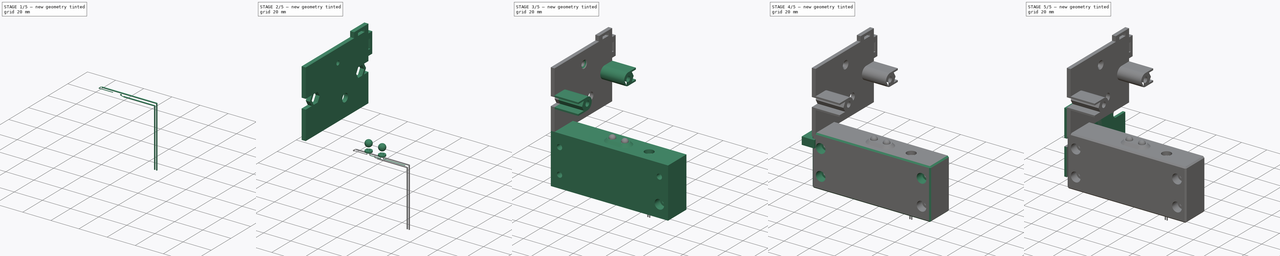
[diagram: build sequence overview — one tinted view per stage of 5, left to right]
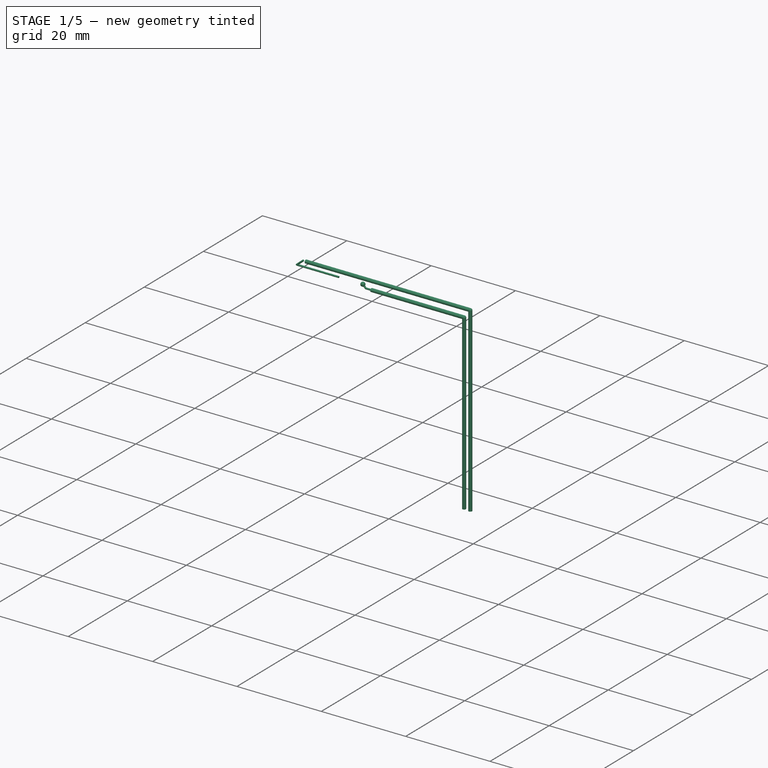
[diagram: stage 1 of 5 — iso view after this stage's code; geometry added in this stage tinted green]
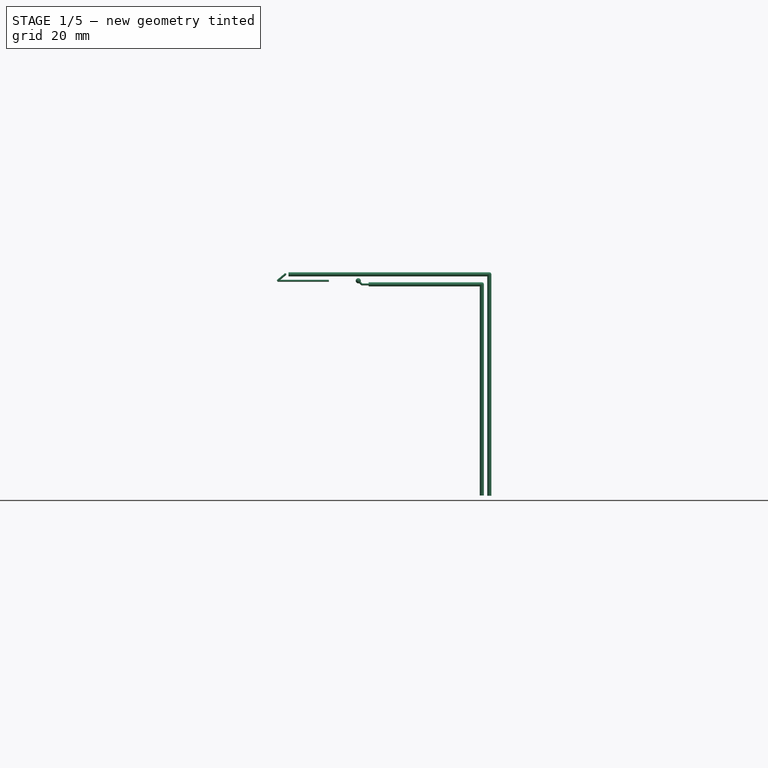
[diagram: stage 1 of 5 — front view after this stage's code; geometry added in this stage tinted green]
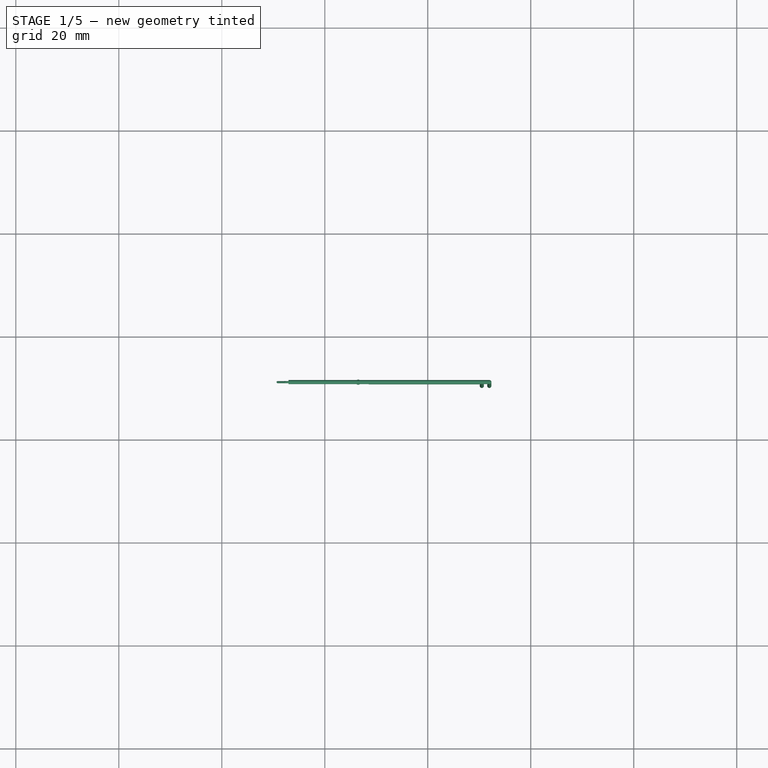
[diagram: stage 1 of 5 — top view after this stage's code; geometry added in this stage tinted green]
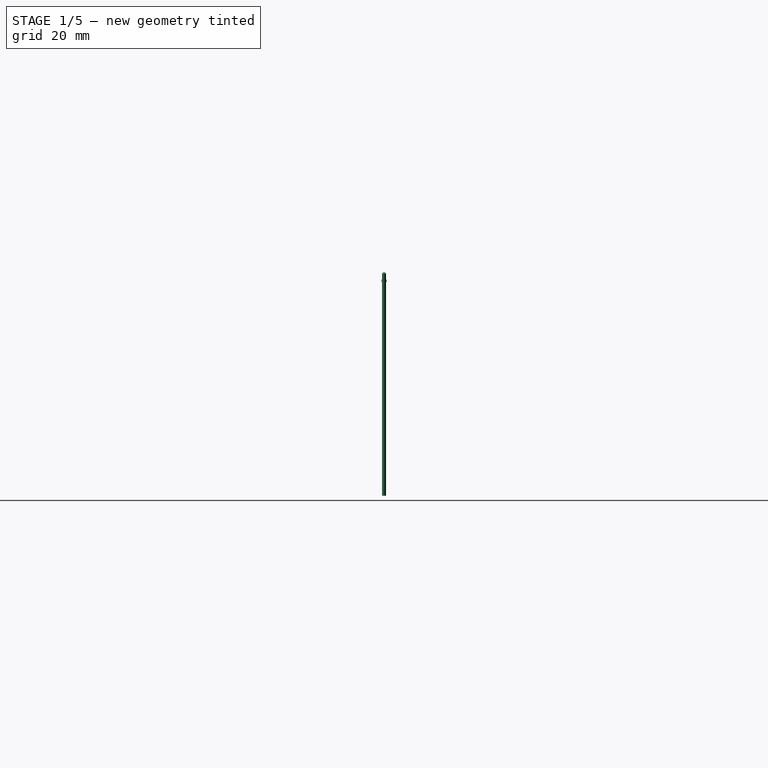
[diagram: stage 1 of 5 — right view after this stage's code; geometry added in this stage tinted green]
FCSTD DOCUMENT  (FreeCAD 0.21R)
Label: SSR_Coder+SidePanel
License: All rights reserved
LicenseURL: http://en.wikipedia.org/wiki/All_rights_reserved
objects: Part::Cylinder×22, Sketcher::SketchObject×13, PartDesign::Pad×9, Part::Sphere×8, Part::Cut×7, Part::Cone×4, PartDesign::SubtractiveCylinder×4, Part::Box×3, Part::Feature×2, Part::MultiFuse×2, PartDesign::AdditiveLoft×2, PartDesign::Body×2, PartDesign::SubtractiveCone×2, Part::Refine×1, PartDesign::Chamfer×1, PartDesign::Pocket×1
note: 102 computed .brp shape members not serialized (recipe doc carries the construction recipe); baked Part::Feature solids carry a one-line shape summary decoded from their .brp

FEATURE [Part::Cylinder] Cylinder018  label="Zylinder014"
  Angle = 360
  AttacherType = Attacher::AttachEngine3D
  FirstAngle = 0
  Height = 39
  Placement = pos=(32.95,10.5,-1.55) rot=(0,1,0;1.5708rad)
  Radius = 0.4
  SecondAngle = 0
FEATURE [Part::Sphere] Sphere003  label="Kugel003"
  Angle1 = -90
  Angle2 = 90
  Angle3 = 360
  AttacherType = Attacher::AttachEngine3D
  Placement = pos=(46.5,10.5,-2.8) rot=(0,0,1;0rad)
  Radius = 0.5
FEATURE [Part::Cylinder] Cylinder019  label="Zylinder015"
  Angle = 360
  AttacherType = Attacher::AttachEngine3D
  FirstAngle = 0
  Height = 2
  Placement = pos=(30.7731,10.5,-2.84417) rot=(0,1,0;0.872665rad)
  Radius = 0.2
  SecondAngle = 0
FEATURE [Part::Cylinder] Cylinder021  label="Zylinder017"
  Angle = 360
  AttacherType = Attacher::AttachEngine3D
  FirstAngle = 0
  Height = 41
  Placement = pos=(70.5,10.5,-3.5) rot=(0,1,0;3.14159rad)
  Radius = 0.4
  SecondAngle = 0
FEATURE [Part::Sphere] Sphere004  label="Kugel004"
  Angle1 = -90
  Angle2 = 90
  Angle3 = 360
  AttacherType = Attacher::AttachEngine3D
  Placement = pos=(70.5,10.5,-3.5) rot=(0,0,1;0rad)
  Radius = 0.4
FEATURE [Part::Cylinder] Cylinder022  label="Zylinder018"
  Angle = 360
  AttacherType = Attacher::AttachEngine3D
  FirstAngle = 0
  Height = 1
  Placement = pos=(47.2,10.5,-3.5) rot=(0,-1,0;0.785398rad)
  Radius = 0.2
  SecondAngle = 0
FEATURE [Part::Sphere] Sphere005  label="Kugel005"
  Angle1 = -90
  Angle2 = 90
  Angle3 = 360
  AttacherType = Attacher::AttachEngine3D
  Placement = pos=(47.2,10.5,-3.5) rot=(0,0,1;0rad)
  Radius = 0.2
FEATURE [Part::Cylinder] Cylinder023  label="Zylinder019"
  Angle = 360
  AttacherType = Attacher::AttachEngine3D
  FirstAngle = 0
  Height = 2
  Placement = pos=(47.2,10.5,-3.5) rot=(0,1,0;1.5708rad)
  Radius = 0.2
  SecondAngle = 0
FEATURE [Part::Sphere] Sphere006  label="Kugel006"
  Angle1 = -90
  Angle2 = 90
  Angle3 = 360
  AttacherType = Attacher::AttachEngine3D
  Placement = pos=(32.3172,10.5,-1.53284) rot=(0,-1,0;1.5708rad)
  Radius = 0.2
FEATURE [Part::Cylinder] Cylinder024  label="Zylinder020"
  Angle = 360
  AttacherType = Attacher::AttachEngine3D
  FirstAngle = 0
  Height = 10
  Placement = pos=(40.8,10.5,-2.8) rot=(0,-1,0;1.5708rad)
  Radius = 0.2
  SecondAngle = 0
FEATURE [Part::Cylinder] Cylinder025  label="Zylinder021"
  Angle = 360
  AttacherType = Attacher::AttachEngine3D
  FirstAngle = 0
  Height = 22
  Placement = pos=(48.5,10.5,-3.5) rot=(0,1,0;1.5708rad)
  Radius = 0.4
  SecondAngle = 0
FEATURE [Part::Cylinder] Cylinder026  label="Zylinder022"
  Angle = 360
  AttacherType = Attacher::AttachEngine3D
  FirstAngle = 0
  Height = 43
  Placement = pos=(71.95,10.5,-1.55) rot=(0,1,0;3.14159rad)
  Radius = 0.4
  SecondAngle = 0
FEATURE [Part::Sphere] Sphere007  label="Kugel007"
  Angle1 = -90
  Angle2 = 90
  Angle3 = 360
  AttacherType = Attacher::AttachEngine3D
  Placement = pos=(71.95,10.5,-1.55) rot=(0,0,1;0rad)
  Radius = 0.4
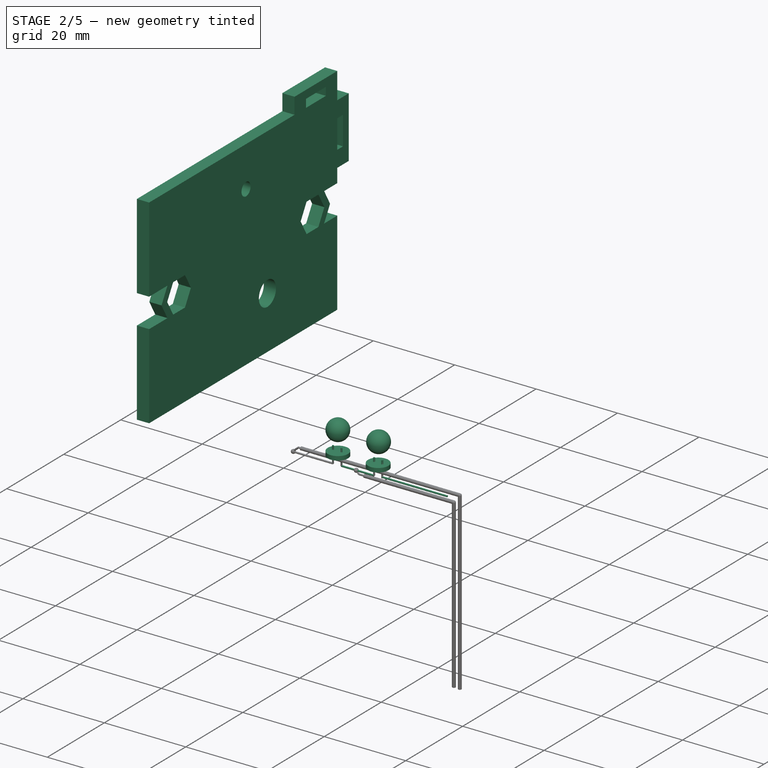
[diagram: stage 2 of 5 — iso view after this stage's code; geometry added in this stage tinted green]
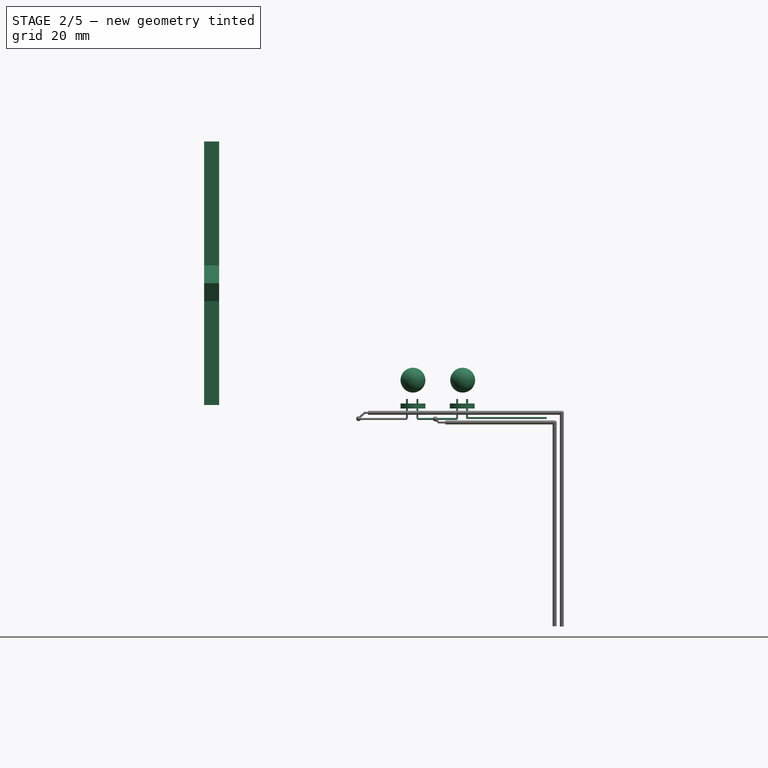
[diagram: stage 2 of 5 — front view after this stage's code; geometry added in this stage tinted green]
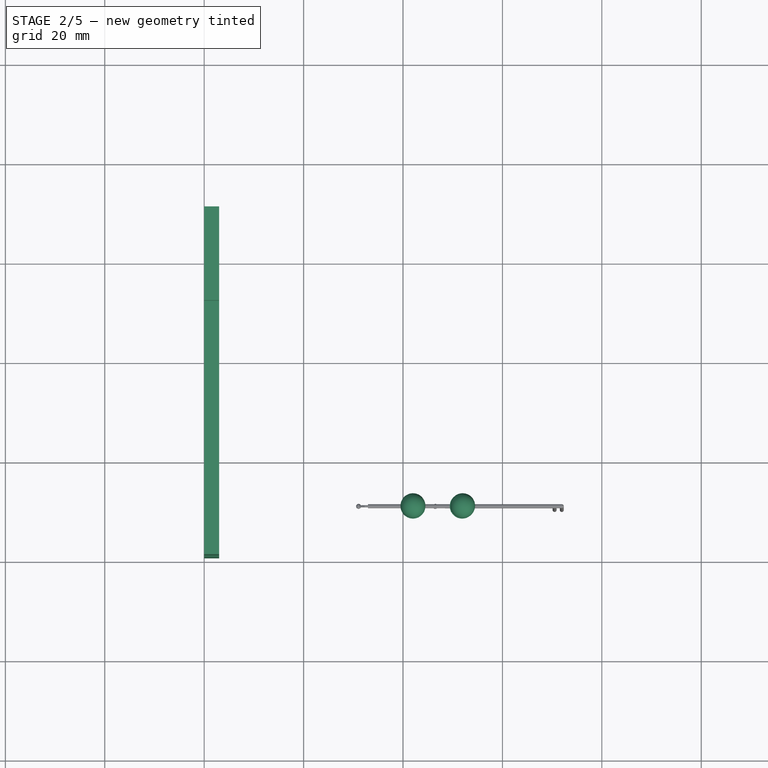
[diagram: stage 2 of 5 — top view after this stage's code; geometry added in this stage tinted green]
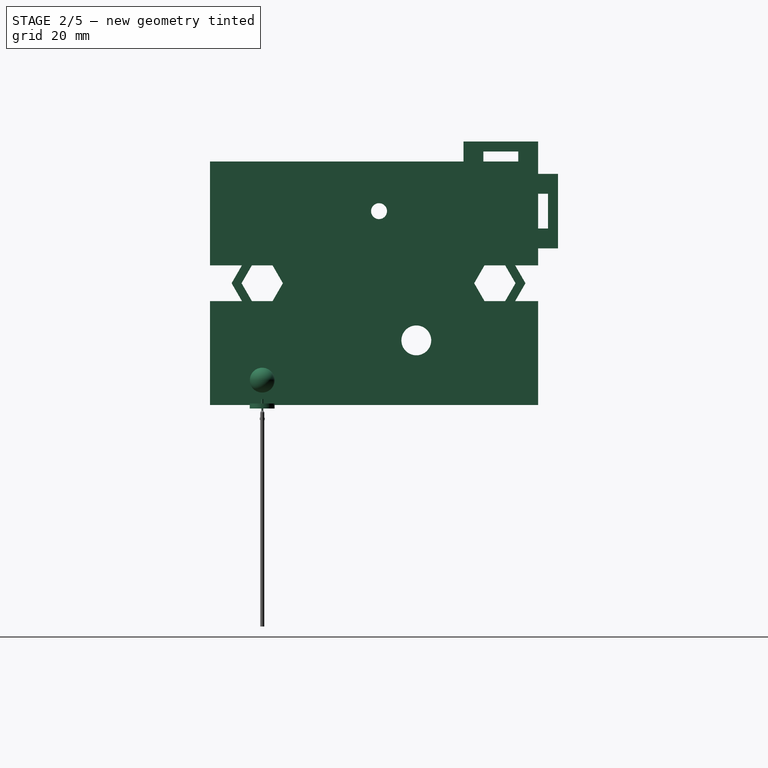
[diagram: stage 2 of 5 — right view after this stage's code; geometry added in this stage tinted green]
FEATURE [Sketcher::SketchObject] Sketch005
  FullyConstrained = true
  MapMode = 5
  Placement = pos=(0,0,0) rot=(0.57735,0.57735,0.57735;2.0944rad)
  Support = -> [YZ_Plane001]
  sketch-geometry (57):
    g0: LineSegment StartX=0 StartY=0 StartZ=0 EndX=66 EndY=0 EndZ=0
    g1: LineSegment StartX=66 StartY=49 StartZ=0 EndX=0 EndY=49 EndZ=0
    g2: Circle CenterX=41.5 CenterY=13 CenterZ=0 NormalX=0 NormalY=0 NormalZ=1 AngleXU=0 Radius=3
    g3: LineSegment StartX=0 StartY=49 StartZ=0 EndX=0 EndY=28.1 EndZ=0
    g4: LineSegment StartX=0 StartY=20.9 StartZ=0 EndX=0 EndY=0 EndZ=0
    g5: LineSegment StartX=66 StartY=0 StartZ=0 EndX=66 EndY=20.9 EndZ=0
    g6: LineSegment StartX=66 StartY=28.1 StartZ=0 EndX=66 EndY=49 EndZ=0
    g7: LineSegment StartX=8.42154 StartY=28.1 StartZ=0 EndX=0 EndY=28.1 EndZ=0
    g8: LineSegment StartX=8.42154 StartY=20.9 StartZ=0 EndX=0 EndY=20.9 EndZ=0
    g9: LineSegment StartX=59.3785 StartY=28.1 StartZ=0 EndX=66 EndY=28.1 EndZ=0
    g10: LineSegment StartX=59.3785 StartY=20.9 StartZ=0 EndX=66 EndY=20.9 EndZ=0
    g11: LineSegment StartX=66 StartY=20.9 StartZ=0 EndX=66 EndY=28.1 EndZ=0
    g12: LineSegment StartX=66 StartY=20.9 StartZ=0 EndX=66 EndY=28.1 EndZ=0
    g13: Circle CenterX=34 CenterY=39 CenterZ=0 NormalX=0 NormalY=0 NormalZ=1 AngleXU=0 Radius=1.6
    g14: LineSegment StartX=55 StartY=51 StartZ=0 EndX=62 EndY=51 EndZ=0
    g15: LineSegment StartX=66 StartY=35.5 StartZ=0 EndX=68 EndY=35.5 EndZ=0
    g16: LineSegment StartX=68 StartY=35.5 StartZ=0 EndX=68 EndY=42.5 EndZ=0
    g17: LineSegment StartX=68 StartY=42.5 StartZ=0 EndX=66 EndY=42.5 EndZ=0
    g18: LineSegment StartX=66 StartY=42.5 StartZ=0 EndX=66 EndY=35.5 EndZ=0
    g19: LineSegment StartX=70 StartY=31.5 StartZ=0 EndX=70 EndY=46.5 EndZ=0
    g20: LineSegment StartX=66 StartY=53 StartZ=0 EndX=51 EndY=53 EndZ=0
    g21: LineSegment StartX=51 StartY=53 StartZ=0 EndX=51 EndY=49 EndZ=0
    g22: LineSegment StartX=51 StartY=49 StartZ=0 EndX=0 EndY=49 EndZ=0
    g23: LineSegment StartX=66 StartY=53 StartZ=0 EndX=66 EndY=46.5 EndZ=0
    g24: LineSegment StartX=70 StartY=46.5 StartZ=0 EndX=66 EndY=46.5 EndZ=0
    g25: LineSegment StartX=66 StartY=28.1 StartZ=0 EndX=66 EndY=31.5 EndZ=0
    g26: LineSegment StartX=66 StartY=31.5 StartZ=0 EndX=70 EndY=31.5 EndZ=0
    g27: LineSegment StartX=62 StartY=49 StartZ=0 EndX=62 EndY=51 EndZ=0
    g28: LineSegment StartX=55 StartY=51 StartZ=0 EndX=55 EndY=49 EndZ=0
    g29: LineSegment StartX=55 StartY=49 StartZ=0 EndX=62 EndY=49 EndZ=0
    g30: LineSegment StartX=8.42154 StartY=20.9 StartZ=0 EndX=12.5785 EndY=20.9 EndZ=0
    g31: LineSegment StartX=12.5785 StartY=20.9 StartZ=0 EndX=14.6569 EndY=24.5 EndZ=0
    g32: LineSegment StartX=14.6569 StartY=24.5 StartZ=0 EndX=12.5785 EndY=28.1 EndZ=0
    g33: LineSegment StartX=12.5785 StartY=28.1 StartZ=0 EndX=8.42154 EndY=28.1 EndZ=0
    g34: Circle CenterX=10.5 CenterY=24.5 CenterZ=0 NormalX=0 NormalY=0 NormalZ=1 AngleXU=0 Radius=4.15692
    g35: LineSegment StartX=8.42154 StartY=28.1 StartZ=0 EndX=8.42154 EndY=20.9 EndZ=0
    g36: LineSegment StartX=59.3785 StartY=28.1 StartZ=0 EndX=55.2215 EndY=28.1 EndZ=0
    g37: LineSegment StartX=55.2215 StartY=28.1 StartZ=0 EndX=53.1431 EndY=24.5 EndZ=0
    g38: LineSegment StartX=53.1431 StartY=24.5 StartZ=0 EndX=55.2215 EndY=20.9 EndZ=0
    g39: LineSegment StartX=55.2215 StartY=20.9 StartZ=0 EndX=59.3785 EndY=20.9 EndZ=0
    g40: LineSegment StartX=59.3785 StartY=20.9 StartZ=0 EndX=61.4569 EndY=24.5 EndZ=0
    g41: LineSegment StartX=61.4569 StartY=24.5 StartZ=0 EndX=59.3785 EndY=28.1 EndZ=0
    g42: Circle CenterX=57.3 CenterY=24.5 CenterZ=0 NormalX=0 NormalY=0 NormalZ=1 AngleXU=0 Radius=4.15692
    g43: LineSegment StartX=8.42154 StartY=28.1 StartZ=0 EndX=6.34308 EndY=24.5 EndZ=0
    g44: LineSegment StartX=8.42154 StartY=20.9 StartZ=0 EndX=6.34308 EndY=24.5 EndZ=0
    g45: Circle CenterX=10.5 CenterY=24.5 CenterZ=0 NormalX=0 NormalY=0 NormalZ=1 AngleXU=0 Radius=24.5
    g46: LineSegment StartX=10.5 StartY=24.5 StartZ=0 EndX=57.3 EndY=24.5 EndZ=0
    g47: LineSegment StartX=61.3785 StartY=28.1 StartZ=0 EndX=63.4569 EndY=24.5 EndZ=0
    g48: LineSegment StartX=61.3785 StartY=20.9 StartZ=0 EndX=63.4569 EndY=24.5 EndZ=0
    g49: LineSegment StartX=61.3785 StartY=28.1 StartZ=0 EndX=66 EndY=28.1 EndZ=0
    g50: LineSegment StartX=61.3785 StartY=20.9 StartZ=0 EndX=66 EndY=20.9 EndZ=0
    g51: LineSegment StartX=61.4569 StartY=24.5 StartZ=0 EndX=63.4569 EndY=24.5 EndZ=0
    g52: LineSegment StartX=0 StartY=28.1 StartZ=0 EndX=6.42154 EndY=28.1 EndZ=0
    g53: LineSegment StartX=6.42154 StartY=28.1 StartZ=0 EndX=4.34308 EndY=24.5 EndZ=0
    g54: LineSegment StartX=4.34308 StartY=24.5 StartZ=0 EndX=6.42154 EndY=20.9 EndZ=0
    g55: LineSegment StartX=6.42154 StartY=20.9 StartZ=0 EndX=0 EndY=20.9 EndZ=0
    g56: LineSegment StartX=4.34308 StartY=24.5 StartZ=0 EndX=6.34308 EndY=24.5 EndZ=0
  constraints (154):
    c: Coincident(g0,g5)
    c: Coincident(g6,g1)
    c: Coincident(g1,g3)
    c: Coincident(g4,g0)
    c: Horizontal(g0)
    c: Horizontal(g1)
    c: Coincident(g0,g-1)
    c: Distance(g1) = 66
    c: Diameter(g2) = 6
    c: Distance(g2,g0) = 13
    c: DistanceX(g-2,g2) = 41.5
    c: Vertical(g3)
    c: Vertical(g4)
    c: Vertical(g5)
    c: Vertical(g6)
    c: Distance(g5,g6) = 49
    c: PointOnObject(g3,g4)
    c: Horizontal(g7)
    c: Horizontal(g8)
    c: Horizontal(g9)
    c: Horizontal(g10)
    c: Coincident(g11,g5)
    c: Coincident(g11,g6)
    c: Vertical(g11)
    c: Coincident(g12,g10)
    c: Distance(g13,g6) = 32
    c: Distance(g13,g1) = 10
    c: Diameter(g13) = 3.2
    c: Horizontal(g14)
    c: Coincident(g15,g16)
    c: Coincident(g16,g17)
    c: Coincident(g17,g18)
    c: Coincident(g18,g15)
    c: Horizontal(g15)
    c: Horizontal(g17)
    c: Vertical(g16)
    c: Vertical(g18)
    c: Distance(g17) = 2
    c: Distance(g14) = 7
    c: Equal(g14,g16)
    c: PointOnObject(g15,g6)
    c: Distance(g17,g1) = 6.5
    c: Vertical(g19)
    c: Horizontal(g20)
    c: Coincident(g20,g21)
    c: PointOnObject(g21,g1)
    c: Vertical(g21)
    c: Coincident(g22,g21)
    c: Coincident(g1,g22)
    c: Distance(g14,g21) = 4
    c: Distance(g1,g19) = 4
    c: Coincident(g23,g20)
    c: Coincident(g24,g19)
    c: Coincident(g24,g23)
    c: Vertical(g23)
    c: Horizontal(g24)
    c: Distance(g21) = 4
    c: Equal(g21,g24)
    c: Coincident(g25,g11)
    c: Coincident(g26,g25)
    c: Coincident(g26,g19)
    c: Horizontal(g26)
    c: Vertical(g25)
    c: Distance(g16,g24) = 4
    c: Distance(g15,g26) = 4
    c: Distance(g14,g23) = 4
    c: Coincident(g27,g14)
    c: Vertical(g27)
    c: Equal(g27,g17)
    c: Coincident(g28,g14)
    c: PointOnObject(g28,g1)
    c: Vertical(g28)
    c: Coincident(g29,g28)
    c: Coincident(g29,g27)
    c: Horizontal(g29)
    c: Coincident(g30,g31)
    c: Coincident(g31,g32)
    c: Coincident(g32,g33)
    c: PointOnObject(g30,g34)
    c: PointOnObject(g30,g34)
    c: PointOnObject(g31,g34)
    c: PointOnObject(g32,g34)
    c: PointOnObject(g33,g34)
    c: Vertical(g35)
    c: Distance(g35) = 7.2
    c: Coincident(g8,g30)
    c: Coincident(g8,g35)
    c: Coincident(g7,g33)
    c: Coincident(g7,g35)
    c: Equal(g30,g31)
    c: Equal(g31,g32)
    c: Equal(g32,g33)
    c: Horizontal(g33)
    c: Coincident(g36,g37)
    c: Coincident(g37,g38)
    c: Coincident(g38,g39)
    c: Coincident(g39,g40)
    c: Coincident(g40,g41)
    c: Coincident(g41,g36)
    c: Equal(g36, g37-g41) x5
    c: PointOnObject(g36,g42)
    c: PointOnObject(g37,g42)
    c: PointOnObject(g38,g42)
    c: PointOnObject(g39,g42)
    c: PointOnObject(g40,g42)
    c: PointOnObject(g41,g42)
    c: Horizontal(g36)
    c: Equal(g37,g32)
    c: Coincident(g36,g9)
    c: Coincident(g10,g39)
    c: Coincident(g43,g7)
    c: PointOnObject(g43,g34)
    c: Coincident(g44,g8)
    c: Coincident(g44,g43)
    c: Equal(g44,g43)
    c: Coincident(g45,g34)
    c: Tangent(g45,g0)
    c: Tangent(g45,g22)
    c: Coincident(g46,g34)
    c: Coincident(g46,g42)
    c: Horizontal(g46)
    c: Distance(g46) = 46.8
    c: PointOnObject(g47,g9)
    c: PointOnObject(g48,g10)
    c: Coincident(g48,g47)
    c: Coincident(g49,g47)
    c: Coincident(g50,g48)
    c: Coincident(g50,g12)
    c: Equal(g47,g48)
    c: Equal(g48,g40)
    c: Coincident(g51,g40)
    c: Coincident(g51,g47)
    c: Horizontal(g51)
    c: Horizontal(g52)
    c: Coincident(g52,g53)
    c: Coincident(g53,g54)
    c: PointOnObject(g54,g8)
    c: Coincident(g54,g55)
    c: Equal(g54,g53)
    c: Equal(g53,g43)
    c: Coincident(g56,g53)
    c: Coincident(g56,g43)
    c: Horizontal(g56)
    c: DistanceX(g34) = 10.5
    c: Coincident(g3,g7)
    c: Coincident(g3,g52)
    c: Coincident(g4,g8)
    c: Coincident(g4,g55)
    c: Coincident(g5,g10)
    c: Coincident(g6,g9)
    c: Coincident(g6,g12)
    c: Coincident(g6,g49)
    c: Distance(g51) = 2
    c: Equal(g56,g51)
FEATURE [PartDesign::Pad] Pad005
  Direction = (1,-2e-16,3e-16)
  Length = 3
  Length2 = 10
  Placement = pos=(0,0,0) rot=(0.57735,0.57735,0.57735;2.0944rad)
  Profile = -> Sketch005
  ReferenceAxis = -> Sketch005 [N_Axis]
  Type = 0
FEATURE [PartDesign::Body] Body002  label="SSR_Cover"
  Group = -> [Sketch005,Pad005,Sketch006,Sketch021,Pad014,Pad015,Cone005,Cone006]
  Origin = -> Origin001
  Tip = -> Cone006
FEATURE [Part::Cylinder] Cylinder009  label="Zylinder005"
  Angle = 360
  AttacherType = Attacher::AttachEngine3D
  FirstAngle = 0
  Height = 1
  Placement = pos=(42,10.5,-0.7) rot=(0,0,1;0rad)
  Radius = 2.5
  SecondAngle = 0
FEATURE [Part::Sphere] Sphere  label="Kugel"
  Angle1 = -90
  Angle2 = 90
  Angle3 = 360
  AttacherType = Attacher::AttachEngine3D
  Placement = pos=(52,10.5,5) rot=(0,0,1;0rad)
  Radius = 2.5
FEATURE [Part::Sphere] Sphere001  label="Kugel001"
  Angle1 = -90
  Angle2 = 90
  Angle3 = 360
  AttacherType = Attacher::AttachEngine3D
  Placement = pos=(42,10.5,5) rot=(0,0,1;0rad)
  Radius = 2.5
FEATURE [Part::Cylinder] Cylinder010  label="Zylinder006"
  Angle = 360
  AttacherType = Attacher::AttachEngine3D
  FirstAngle = 0
  Height = 4
  Placement = pos=(50.9,10.5,-2.8) rot=(0,0,1;0rad)
  Radius = 0.2
  SecondAngle = 0
FEATURE [Part::Cylinder] Cylinder011  label="Zylinder007"
  Angle = 360
  AttacherType = Attacher::AttachEngine3D
  FirstAngle = 0
  Height = 1
  Placement = pos=(51.9,10.5,-0.7) rot=(0,0,1;0rad)
  Radius = 2.5
  SecondAngle = 0
FEATURE [Part::Cylinder] Cylinder012  label="Zylinder008"
  Angle = 360
  AttacherType = Attacher::AttachEngine3D
  FirstAngle = 0
  Height = 4
  Placement = pos=(42.9,10.5,-2.8) rot=(0,0,1;0rad)
  Radius = 0.2
  SecondAngle = 0
FEATURE [Part::Cylinder] Cylinder013  label="Zylinder009"
  Angle = 360
  AttacherType = Attacher::AttachEngine3D
  FirstAngle = 0
  Height = 4
  Placement = pos=(40.8,10.5,-2.8) rot=(0,0,1;0rad)
  Radius = 0.2
  SecondAngle = 0
FEATURE [Part::Cylinder] Cylinder014  label="Zylinder010"
  Angle = 360
  AttacherType = Attacher::AttachEngine3D
  FirstAngle = 0
  Height = 4
  Placement = pos=(52.9,10.5,-2.8) rot=(0,0,1;0rad)
  Radius = 0.2
  SecondAngle = 0
FEATURE [Part::Cylinder] Cylinder015  label="Zylinder011"
  Angle = 360
  AttacherType = Attacher::AttachEngine3D
  FirstAngle = 0
  Height = 8
  Placement = pos=(50.9,10.5,-2.8) rot=(0,1,0;4.71239rad)
  Radius = 0.2
  SecondAngle = 0
FEATURE [Part::Cylinder] Cylinder016  label="Zylinder012"
  Angle = 360
  AttacherType = Attacher::AttachEngine3D
  FirstAngle = 0
  Height = 2
  Placement = pos=(32.35,10.5,-1.55) rot=(0,1,0;1.5708rad)
  Radius = 0.2
  SecondAngle = 0
FEATURE [Part::Cylinder] Cylinder017  label="Zylinder013"
  Angle = 360
  AttacherType = Attacher::AttachEngine3D
  FirstAngle = 0
  Height = 16
  Placement = pos=(52.9,10.5,-2.6) rot=(0,1,0;1.5708rad)
  Radius = 0.2
  SecondAngle = 0
FEATURE [Part::Sphere] Sphere002  label="Kugel002"
  Angle1 = -90
  Angle2 = 90
  Angle3 = 360
  AttacherType = Attacher::AttachEngine3D
  Placement = pos=(31.0672,10.5,-2.73284) rot=(0,1,0;4.71239rad)
  Radius = 0.5
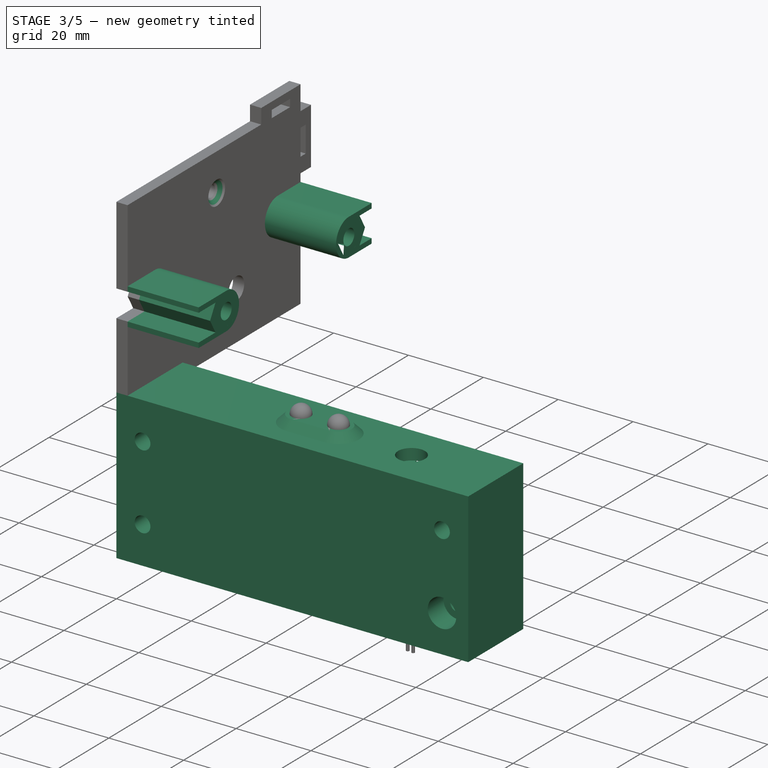
[diagram: stage 3 of 5 — iso view after this stage's code; geometry added in this stage tinted green]
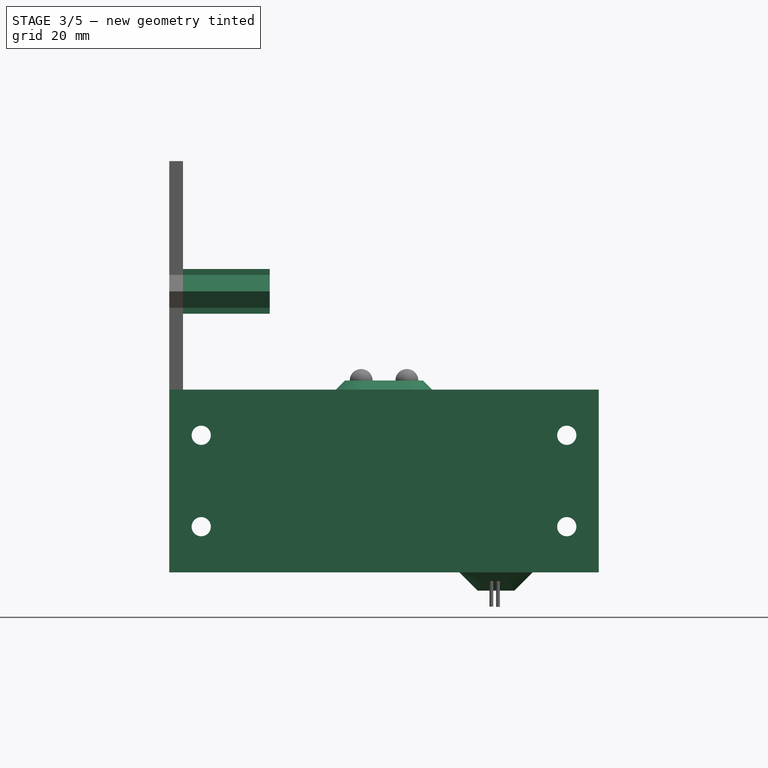
[diagram: stage 3 of 5 — front view after this stage's code; geometry added in this stage tinted green]
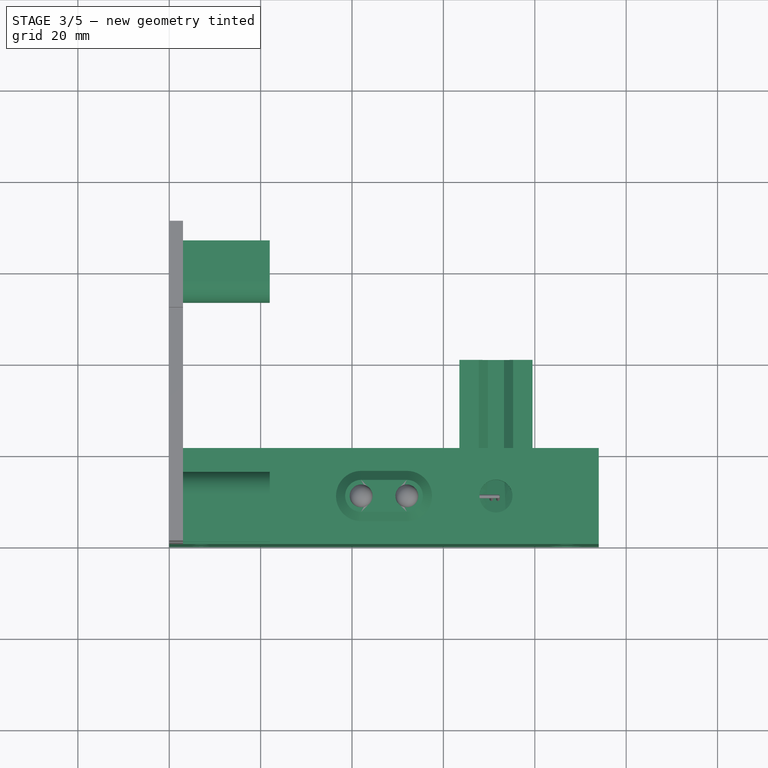
[diagram: stage 3 of 5 — top view after this stage's code; geometry added in this stage tinted green]
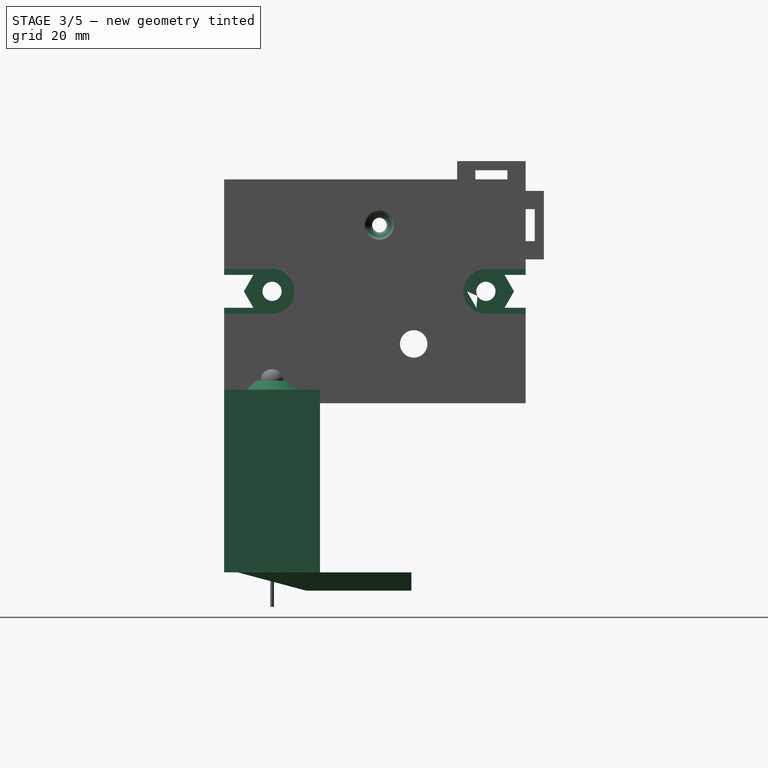
[diagram: stage 3 of 5 — right view after this stage's code; geometry added in this stage tinted green]
FEATURE [Part::Cut] Cut006
  Base = -> CAP_RELE001001
  Tool = -> Fusion001
FEATURE [Sketcher::SketchObject] Sketch
  FullyConstrained = true
  MapMode = 5
  Support = -> [XY_Plane]
  sketch-geometry (13):
    g0: Circle CenterX=71.5 CenterY=10.5 CenterZ=0 NormalX=0 NormalY=0 NormalZ=1 AngleXU=0 Radius=10.5
    g1: Circle CenterX=42 CenterY=10.5 CenterZ=0 NormalX=0 NormalY=0 NormalZ=1 AngleXU=0 Radius=5
    g2: Circle CenterX=52 CenterY=10.5 CenterZ=0 NormalX=0 NormalY=0 NormalZ=1 AngleXU=0 Radius=5
    g3: LineSegment StartX=94 StartY=21 StartZ=0 EndX=0 EndY=21 EndZ=0
    g4: Circle CenterX=42 CenterY=10.5 CenterZ=0 NormalX=0 NormalY=0 NormalZ=1 AngleXU=0 Radius=2.5
    g5: Circle CenterX=52 CenterY=10.5 CenterZ=0 NormalX=0 NormalY=0 NormalZ=1 AngleXU=0 Radius=2.5
    g6: Circle CenterX=71.5 CenterY=10.5 CenterZ=0 NormalX=0 NormalY=0 NormalZ=1 AngleXU=0 Radius=3.6
    g7: Circle CenterX=71.5 CenterY=10.5 CenterZ=0 NormalX=0 NormalY=0 NormalZ=1 AngleXU=0 Radius=5
    g8: LineSegment StartX=94 StartY=21 StartZ=0 EndX=52 EndY=10.5 EndZ=0
    g9: LineSegment StartX=42 StartY=10.5 StartZ=0 EndX=0 EndY=21 EndZ=0
    g10: LineSegment StartX=94 StartY=0 StartZ=0 EndX=94 EndY=21 EndZ=0
    g11: LineSegment StartX=0 StartY=0 StartZ=0 EndX=94 EndY=0 EndZ=0
    g12: LineSegment StartX=0 StartY=21 StartZ=0 EndX=0 EndY=0 EndZ=0
  constraints (33):
    c: Diameter(g0) = 21
    c: Diameter(g1) = 10
    c: Equal(g2,g1)
    c: Tangent(g1,g2)
    c: Horizontal(g3)
    c: Coincident(g4,g1)
    c: Coincident(g5,g2)
    c: Coincident(g6,g0)
    c: Diameter(g4) = 5
    c: Equal(g4,g5)
    c: Diameter(g6) = 7.2
    c: Tangent(g0,g3)
    c: Coincident(g7,g6)
    c: Diameter(g7) = 10
    c: Coincident(g8,g5)
    c: Coincident(g9,g4)
    c: Equal(g9,g8)
    c: Vertical(g10)
    c: Coincident(g12,g11)
    c: Horizontal(g11)
    c: Vertical(g12)
    c: Coincident(g3,g10)
    c: Distance(g12) = 21
    c: Coincident(g3,g12)
    c: Coincident(g11,g-1)
    c: Coincident(g10,g11)
    c: Distance(g3) = 94
    c: Coincident(g8,g3)
    c: Coincident(g9,g3)
    c: Tangent(g0,g11)
    c: Distance(g6,g10) = 22.5
    c: Horizontal(g4,g5)
    c: Horizontal(g5,g0)
FEATURE [PartDesign::Pad] Pad
  Direction = (0,0,1)
  Length = 3
  Length2 = 10
  Profile = -> Sketch
  ReferenceAxis = -> Sketch [N_Axis]
  Type = 0
FEATURE [Sketcher::SketchObject] Sketch006
  ExternalGeometry = -> [Pad005]
  FullyConstrained = true
  MapMode = 5
  Placement = pos=(3,-7e-16,7e-16) rot=(0.57735,0.57735,0.57735;2.0944rad)
  Support = -> [Pad005]
  sketch-geometry (39):
    g0: ArcOfCircle CenterX=10.5 CenterY=24.5 CenterZ=0 NormalX=0 NormalY=0 NormalZ=1 AngleXU=0 Radius=4.9 StartAngle=4.71239 EndAngle=7.85398
    g1: ArcOfCircle CenterX=57.3 CenterY=24.5 CenterZ=0 NormalX=0 NormalY=0 NormalZ=1 AngleXU=0 Radius=4.9 StartAngle=1.5708 EndAngle=4.71239
    g2: LineSegment StartX=10.5 StartY=29.4 StartZ=0 EndX=0 EndY=29.4 EndZ=0
    g3: LineSegment StartX=10.5 StartY=19.6 StartZ=0 EndX=5.3e-15 EndY=19.6 EndZ=0
    g4: LineSegment StartX=57.3 StartY=29.4 StartZ=0 EndX=66 EndY=29.4 EndZ=0
    g5: LineSegment StartX=57.3 StartY=19.6 StartZ=0 EndX=66 EndY=19.6 EndZ=0
    g6: LineSegment StartX=55.2215 StartY=20.9 StartZ=0 EndX=53.1431 EndY=24.5 EndZ=0
    g7: LineSegment StartX=53.1431 StartY=24.5 StartZ=0 EndX=55.2215 EndY=20.9 EndZ=0
    g8: LineSegment StartX=15.4 StartY=24.5 StartZ=0 EndX=52.4 EndY=24.5 EndZ=0
    g9: LineSegment StartX=53.1431 StartY=24.5 StartZ=0 EndX=55.2215 EndY=20.9 EndZ=0
    g10: LineSegment StartX=55.2215 StartY=28.1 StartZ=0 EndX=57.3 EndY=24.5 EndZ=0
    g11: LineSegment StartX=55.2215 StartY=20.9 StartZ=0 EndX=57.3 EndY=24.5 EndZ=0
    g12: LineSegment StartX=53.1431 StartY=24.5 StartZ=0 EndX=57.3 EndY=24.5 EndZ=0
    g13: LineSegment StartX=12.5785 StartY=28.1 StartZ=0 EndX=10.5 EndY=24.5 EndZ=0
    g14: LineSegment StartX=14.6569 StartY=24.5 StartZ=0 EndX=10.5 EndY=24.5 EndZ=0
    g15: LineSegment StartX=12.5785 StartY=20.9 StartZ=0 EndX=10.5 EndY=24.5 EndZ=0
    g16: LineSegment StartX=12.5785 StartY=28.1 StartZ=0 EndX=14.6569 EndY=24.5 EndZ=0
    g17: LineSegment StartX=12.5785 StartY=20.9 StartZ=0 EndX=14.6569 EndY=24.5 EndZ=0
    g18: LineSegment StartX=12.5785 StartY=20.9 StartZ=0 EndX=8.42154 EndY=20.9 EndZ=0
    g19: LineSegment StartX=12.5785 StartY=28.1 StartZ=0 EndX=8.42154 EndY=28.1 EndZ=0
    g20: LineSegment StartX=6.34308 StartY=24.5 StartZ=0 EndX=8.42154 EndY=28.1 EndZ=0
    g21: LineSegment StartX=8.42154 StartY=20.9 StartZ=0 EndX=6.34308 EndY=24.5 EndZ=0
    g22: LineSegment StartX=66 StartY=28.1 StartZ=0 EndX=61.3785 EndY=28.1 EndZ=0
    g23: LineSegment StartX=61.3785 StartY=28.1 StartZ=0 EndX=63.4569 EndY=24.5 EndZ=0
    g24: LineSegment StartX=55.2215 StartY=28.1 StartZ=0 EndX=59.3785 EndY=28.1 EndZ=0
    g25: LineSegment StartX=59.3785 StartY=28.1 StartZ=0 EndX=61.4569 EndY=24.5 EndZ=0
    g26: LineSegment StartX=61.4569 StartY=24.5 StartZ=0 EndX=59.3785 EndY=20.9 EndZ=0
    g27: LineSegment StartX=59.3785 StartY=20.9 StartZ=0 EndX=55.2215 EndY=20.9 EndZ=0
    g28: LineSegment StartX=6.42154 StartY=20.9 StartZ=0 EndX=5.3e-15 EndY=20.9 EndZ=0
    g29: LineSegment StartX=53.1431 StartY=24.5 StartZ=0 EndX=55.2215 EndY=28.1 EndZ=0
    g30: LineSegment StartX=63.4569 StartY=24.5 StartZ=0 EndX=61.3785 EndY=20.9 EndZ=0
    g31: LineSegment StartX=61.3785 StartY=20.9 StartZ=0 EndX=66 EndY=20.9 EndZ=0
    g32: LineSegment StartX=4.34308 StartY=24.5 StartZ=0 EndX=6.42154 EndY=20.9 EndZ=0
    g33: LineSegment StartX=4.34308 StartY=24.5 StartZ=0 EndX=6.42154 EndY=28.1 EndZ=0
    g34: LineSegment StartX=6.42154 StartY=28.1 StartZ=0 EndX=8.9e-15 EndY=28.1 EndZ=0
    g35: LineSegment StartX=8.9e-15 StartY=28.1 StartZ=0 EndX=0 EndY=29.4 EndZ=0
    g36: LineSegment StartX=5.3e-15 StartY=20.9 StartZ=0 EndX=5.3e-15 EndY=19.6 EndZ=0
    g37: LineSegment StartX=66 StartY=28.1 StartZ=0 EndX=66 EndY=29.4 EndZ=0
    g38: LineSegment StartX=66 StartY=19.6 StartZ=0 EndX=66 EndY=20.9 EndZ=0
  constraints (87):
    c: Horizontal(g2)
    c: Horizontal(g3)
    c: Horizontal(g4)
    c: Coincident(g6,g7)
    c: Horizontal(g5)
    c: Equal(g1,g0)
    c: PointOnObject(g8,g0)
    c: PointOnObject(g8,g1)
    c: Horizontal(g8)
    c: PointOnObject(g1,g8)
    c: Distance(g8) = 37
    c: Coincident(g7,g9)
    c: Coincident(g10,g1)
    c: Coincident(g11,g7)
    c: Coincident(g11,g1)
    c: Coincident(g12,g1)
    c: Equal(g10,g12)
    c: Equal(g12,g11)
    c: Tangent(g4,g1) = 1.5708
    c: Tangent(g5,g1) = -1.5708
    c: Tangent(g2,g0) = -1.5708
    c: Tangent(g3,g0) = 1.5708
    c: PointOnObject(g2,g-2)
    c: Coincident(g13,g0)
    c: Coincident(g14,g0)
    c: Horizontal(g14)
    c: Coincident(g15,g0)
    c: Equal(g13,g14)
    c: Coincident(g16,g14)
    c: Coincident(g17,g16)
    c: Diameter(g0) = 9.8
    c: Coincident(g15,g17)
    c: Coincident(g18,g17)
    c: Coincident(g20,g19)
    c: Coincident(g21,g18)
    c: Coincident(g21,g20)
    c: Coincident(g22,g23)
    c: Coincident(g6,g9)
    c: Coincident(g6,g12)
    c: Coincident(g6,g7)
    c: Coincident(g24,g10)
    c: Coincident(g25,g24)
    c: Coincident(g26,g25)
    c: Coincident(g27,g26)
    c: Coincident(g27,g6)
    c: Coincident(g13,g16)
    c: Coincident(g13,g19)
    c: Coincident(g29,g6)
    c: Coincident(g29,g24)
    c: Coincident(g30,g23)
    c: Coincident(g31,g30)
    c: Coincident(g32,g28)
    c: Coincident(g28,g-4)
    c: Coincident(g32,g33)
    c: Coincident(g33,g-5)
    c: Coincident(g33,g34)
    c: Coincident(g34,g-3)
    c: Coincident(g34,g35)
    c: Coincident(g35,g2)
    c: Coincident(g32,g-5)
    c: Coincident(g28,g-4)
    c: Coincident(g15,g-8)
    c: Coincident(g14,g-7)
    c: Coincident(g13,g-7)
    c: Coincident(g19,g-6)
    c: Coincident(g20,g-6)
    c: Coincident(g18,g-8)
    c: Coincident(g36,g28)
    c: Coincident(g36,g3)
    c: Vertical(g36)
    c: Coincident(g26,g-12)
    c: Coincident(g25,g-11)
    c: Coincident(g6,g-10)
    c: Coincident(g10,g-10)
    c: Coincident(g24,g-11)
    c: Coincident(g6,g-12)
    c: Coincident(g22,g-9)
    c: Coincident(g22,g-9)
    c: Coincident(g37,g22)
    c: Coincident(g37,g4)
    c: Vertical(g37)
    c: Coincident(g23,g-13)
    c: Coincident(g30,g-13)
    c: Coincident(g38,g31)
    c: Vertical(g38)
    c: Coincident(g31,g-14)
    c: Coincident(g5,g38)
FEATURE [Sketcher::SketchObject] Sketch009
  ExternalGeometry = -> [Pad]
  FullyConstrained = true
  MapMode = 5
  Placement = pos=(0,0,3) rot=(0,0,1;0rad)
  Support = -> [Pad]
  sketch-geometry (6):
    g0: ArcOfCircle CenterX=42 CenterY=10.5 CenterZ=0 NormalX=0 NormalY=0 NormalZ=1 AngleXU=0 Radius=5.5 StartAngle=1.5708 EndAngle=4.71239
    g1: ArcOfCircle CenterX=52 CenterY=10.5 CenterZ=0 NormalX=0 NormalY=0 NormalZ=1 AngleXU=0 Radius=5.5 StartAngle=4.71239 EndAngle=7.85398
    g2: LineSegment StartX=42 StartY=5 StartZ=0 EndX=52 EndY=5 EndZ=0
    g3: LineSegment StartX=52 StartY=16 StartZ=0 EndX=42 EndY=16 EndZ=0
    g4: Circle CenterX=42 CenterY=10.5 CenterZ=0 NormalX=0 NormalY=0 NormalZ=1 AngleXU=0 Radius=2.5
    g5: Circle CenterX=52 CenterY=10.5 CenterZ=0 NormalX=0 NormalY=0 NormalZ=1 AngleXU=0 Radius=2.5
  constraints (12):
    c: Tangent(g0,g2) = -1.5708
    c: Tangent(g2,g1) = -1.5708
    c: Tangent(g1,g3) = -1.5708
    c: Tangent(g3,g0) = -1.5708
    c: Equal(g0,g1)
    c: Diameter(g0) = 11
    c: Coincident(g0,g-5)
    c: Coincident(g1,g-4)
    c: Coincident(g4,g0)
    c: Coincident(g5,g1)
    c: Equal(g4,g-5)
    c: Equal(g5,g4)
FEATURE [Sketcher::SketchObject] Sketch010
  AttachmentOffset = pos=(0,0,2) rot=(0,0,1;0rad)
  ExternalGeometry = -> [Pad]
  FullyConstrained = true
  MapMode = 5
  Placement = pos=(0,0,5) rot=(0,0,1;0rad)
  Support = -> [Pad]
  sketch-geometry (6):
    g0: ArcOfCircle CenterX=42 CenterY=10.5 CenterZ=0 NormalX=0 NormalY=0 NormalZ=1 AngleXU=0 Radius=3.5 StartAngle=1.5708 EndAngle=4.71239
    g1: ArcOfCircle CenterX=52 CenterY=10.5 CenterZ=0 NormalX=0 NormalY=0 NormalZ=1 AngleXU=0 Radius=3.5 StartAngle=4.71239 EndAngle=7.85398
    g2: LineSegment StartX=42 StartY=7 StartZ=0 EndX=52 EndY=7 EndZ=0
    g3: LineSegment StartX=52 StartY=14 StartZ=0 EndX=42 EndY=14 EndZ=0
    g4: Circle CenterX=42 CenterY=10.5 CenterZ=0 NormalX=0 NormalY=0 NormalZ=1 AngleXU=0 Radius=2.5
    g5: Circle CenterX=52 CenterY=10.5 CenterZ=0 NormalX=0 NormalY=0 NormalZ=1 AngleXU=0 Radius=2.5
  constraints (12):
    c: Tangent(g0,g2) = -1.5708
    c: Tangent(g2,g1) = -1.5708
    c: Tangent(g1,g3) = -1.5708
    c: Tangent(g3,g0) = -1.5708
    c: Equal(g0,g1)
    c: Coincident(g0,g-3)
    c: Coincident(g1,g-4)
    c: Coincident(g4,g0)
    c: Coincident(g5,g1)
    c: Equal(g4,g-3)
    c: Equal(g5,g-4)
    c: Diameter(g0) = 7
FEATURE [PartDesign::AdditiveLoft] AdditiveLoft
  BaseFeature = -> Pad
  Closed = true
  Profile = -> Sketch009
  Ruled = false
  Sections = -> [Sketch010]
FEATURE [Sketcher::SketchObject] Sketch011
  ExternalGeometry = -> [AdditiveLoft]
  FullyConstrained = true
  MapMode = 5
  Placement = pos=(0,0,0) rot=(1,0,0;1.5708rad)
  Support = -> [AdditiveLoft]
  sketch-geometry (13):
    g0: LineSegment StartX=0 StartY=-37 StartZ=0 EndX=0 EndY=0 EndZ=0
    g1: LineSegment StartX=94 StartY=0 StartZ=0 EndX=0 EndY=0 EndZ=0
    g2: LineSegment StartX=94 StartY=-37 StartZ=0 EndX=94 EndY=0 EndZ=0
    g3: LineSegment StartX=0 StartY=-37 StartZ=0 EndX=94 EndY=-37 EndZ=0
    g4: Circle CenterX=7 CenterY=-7 CenterZ=0 NormalX=0 NormalY=0 NormalZ=1 AngleXU=0 Radius=2.1
    g5: Circle CenterX=7 CenterY=-27 CenterZ=0 NormalX=0 NormalY=0 NormalZ=1 AngleXU=0 Radius=2.1
    g6: Circle CenterX=87 CenterY=-7 CenterZ=0 NormalX=0 NormalY=0 NormalZ=1 AngleXU=0 Radius=2.1
    g7: Circle CenterX=87 CenterY=-27 CenterZ=0 NormalX=0 NormalY=0 NormalZ=1 AngleXU=0 Radius=2.1
    g8: LineSegment StartX=7 StartY=-7 StartZ=0 EndX=87 EndY=-7 EndZ=0
    g9: LineSegment StartX=87 StartY=-7 StartZ=0 EndX=87 EndY=-27 EndZ=0
    g10: LineSegment StartX=87 StartY=-27 StartZ=0 EndX=7 EndY=-27 EndZ=0
    g11: LineSegment StartX=7 StartY=-27 StartZ=0 EndX=7 EndY=-7 EndZ=0
    g12: Circle CenterX=87 CenterY=-7 CenterZ=0 NormalX=0 NormalY=0 NormalZ=1 AngleXU=0 Radius=3.75
  constraints (33):
    c: Vertical(g0)
    c: Coincident(g2,g1)
    c: Horizontal(g1)
    c: Vertical(g2)
    c: Horizontal(g3)
    c: PointOnObject(g-3,g2)
    c: Distance(g3,g-3) = 40
    c: Coincident(g0,g3)
    c: Coincident(g2,g3)
    c: Coincident(g8,g9)
    c: Coincident(g9,g10)
    c: Coincident(g10,g11)
    c: Coincident(g11,g8)
    c: Horizontal(g8)
    c: Horizontal(g10)
    c: Vertical(g9)
    c: Vertical(g11)
    c: Coincident(g8,g4)
    c: Coincident(g9,g7)
    c: Coincident(g6,g8)
    c: Coincident(g5,g10)
    c: Distance(g11) = 20
    c: Distance(g4,g-3) = 10
    c: Equal(g4,g5)
    c: Equal(g5,g6)
    c: Equal(g6,g7)
    c: Diameter(g4) = 4.2
    c: Distance(g4,g0) = 7
    c: Distance(g6,g2) = 7
    c: Coincident(g12,g6)
    c: Diameter(g12) = 7.5
    c: Coincident(g0,g1)
    c: Coincident(g0,g-1)
FEATURE [PartDesign::Pad] Pad008
  BaseFeature = -> AdditiveLoft
  Direction = (0,-1,2e-16)
  Length = 3
  Length2 = 10
  Profile = -> Sketch011
  ReferenceAxis = -> Sketch011 [N_Axis]
  Reversed = true
  Type = 0
FEATURE [Sketcher::SketchObject] Sketch012
  ExternalGeometry = -> [Pad008]
  FullyConstrained = true
  MapMode = 5
  Placement = pos=(0,21,0) rot=(0,0.707107,0.707107;3.14159rad)
  Support = -> [Pad008]
  sketch-geometry (22):
    g0: Circle CenterX=-87 CenterY=-7 CenterZ=0 NormalX=0 NormalY=0 NormalZ=1 AngleXU=0 Radius=2.1
    g1: Circle CenterX=-87 CenterY=-27 CenterZ=0 NormalX=0 NormalY=0 NormalZ=1 AngleXU=0 Radius=2.1
    g2: Circle CenterX=-7 CenterY=-27 CenterZ=0 NormalX=0 NormalY=0 NormalZ=1 AngleXU=0 Radius=2.1
    g3: Circle CenterX=-7 CenterY=-7 CenterZ=0 NormalX=0 NormalY=0 NormalZ=1 AngleXU=0 Radius=2.1
    g4: LineSegment StartX=-94 StartY=0 StartZ=0 EndX=-81 EndY=0 EndZ=0
    g5: LineSegment StartX=-81 StartY=0 StartZ=0 EndX=-81 EndY=-34 EndZ=0
    g6: LineSegment StartX=-13 StartY=-34 StartZ=0 EndX=-13 EndY=0 EndZ=0
    g7: LineSegment StartX=-13 StartY=0 StartZ=0 EndX=0 EndY=0 EndZ=0
    g8: LineSegment StartX=0 StartY=0 StartZ=0 EndX=0 EndY=-37 EndZ=0
    g9: LineSegment StartX=-94 StartY=-37 StartZ=0 EndX=-94 EndY=0 EndZ=0
    g10: LineSegment StartX=-67.5 StartY=-41 StartZ=0 EndX=-75.5 EndY=-41 EndZ=0
    g11: LineSegment StartX=-75.5 StartY=-41 StartZ=0 EndX=-79.5 EndY=-37 EndZ=0
    g12: LineSegment StartX=-79.5 StartY=-37 StartZ=0 EndX=-94 EndY=-37 EndZ=0
    g13: LineSegment StartX=0 StartY=-37 StartZ=0 EndX=-63.5 EndY=-37 EndZ=0
    g14: LineSegment StartX=-63.5 StartY=-37 StartZ=0 EndX=-67.5 EndY=-41 EndZ=0
    g15: LineSegment StartX=-75.1 StartY=3 StartZ=0 EndX=-79.5 EndY=-37 EndZ=0
    g16: LineSegment StartX=-67.9 StartY=3 StartZ=0 EndX=-63.5 EndY=-37 EndZ=0
    g17: LineSegment StartX=-81 StartY=-34 StartZ=0 EndX=-78.2574 EndY=-34 EndZ=0
    g18: LineSegment StartX=-64.7426 StartY=-34 StartZ=0 EndX=-13 EndY=-34 EndZ=0
    g19: LineSegment StartX=-69.7426 StartY=-39 StartZ=0 EndX=-64.7426 EndY=-34 EndZ=0
    g20: LineSegment StartX=-78.2574 StartY=-34 StartZ=0 EndX=-73.2574 EndY=-39 EndZ=0
    g21: LineSegment StartX=-73.2574 StartY=-39 StartZ=0 EndX=-69.7426 EndY=-39 EndZ=0
  constraints (57):
    c: Coincident(g0,g-3)
    c: Coincident(g1,g-4)
    c: Coincident(g2,g-8)
    c: Coincident(g3,g-7)
    c: Coincident(g-6,g4)
    c: PointOnObject(g4,g-6)
    c: Coincident(g4,g5)
    c: Vertical(g5)
    c: Coincident(g5,g17)
    c: Coincident(g18,g6)
    c: PointOnObject(g6,g-6)
    c: Vertical(g6)
    c: Coincident(g6,g7)
    c: Coincident(g7,g-6)
    c: Coincident(g7,g8)
    c: PointOnObject(g8,g-5)
    c: Vertical(g8)
    c: Coincident(g8,g13)
    c: Coincident(g12,g-5)
    c: Coincident(g12,g9)
    c: Coincident(g9,g4)
    c: Distance(g4) = 13
    c: Equal(g4,g7)
    c: Equal(g-7,g3)
    c: Equal(g2,g-8)
    c: Equal(g-3,g0)
    c: Equal(g1,g-4)
    c: Coincident(g14,g10)
    c: Coincident(g10,g11)
    c: Coincident(g11,g12)
    c: Coincident(g13,g14)
    c: Equal(g11,g14)
    c: Horizontal(g10)
    c: Perpendicular(g14,g11)
    c: Horizontal(g12)
    c: Horizontal(g13)
    c: Distance(g10) = 8
    c: Distance(g10,g-5) = 4
    c: Coincident(g15,g11)
    c: Coincident(g16,g13)
    c: Equal(g15,g16)
    c: Distance(g18,g13) = 3
    c: Coincident(g17,g20)
    c: Horizontal(g17)
    c: Coincident(g19,g18)
    c: Horizontal(g18)
    c: Coincident(g21,g19)
    c: Coincident(g20,g21)
    c: Horizontal(g21)
    c: Distance(g20,g10) = 2
    c: Parallel(g14,g19)
    c: Parallel(g20,g11)
    c: Distance(g20,g11) = 3
    c: Distance(g19,g14) = 3
    c: PointOnObject(g17,g18)
    c: Coincident(g15,g-9)
    c: Coincident(g16,g-9)
FEATURE [PartDesign::Pad] Pad009
  BaseFeature = -> Pad008
  Direction = (0,1,-2e-16)
  Length = 3
  Length2 = 10
  Profile = -> Sketch012
  ReferenceAxis = -> Sketch012 [N_Axis]
  Reversed = true
  Type = 0
FEATURE [Sketcher::SketchObject] Sketch013
  ExternalGeometry = -> [Pad009]
  FullyConstrained = true
  MapMode = 5
  Placement = pos=(0,3,-7e-16) rot=(0,0.707107,0.707107;3.14159rad)
  Support = -> [Pad009]
  sketch-geometry (20):
    g0: LineSegment StartX=-81 StartY=0 StartZ=0 EndX=-94 EndY=0 EndZ=0
    g1: LineSegment StartX=-94 StartY=0 StartZ=0 EndX=-94 EndY=-37 EndZ=0
    g2: LineSegment StartX=-94 StartY=-37 StartZ=0 EndX=-78.2574 EndY=-37 EndZ=0
    g3: LineSegment StartX=-64.7426 StartY=-37 StartZ=0 EndX=0 EndY=-37 EndZ=0
    g4: LineSegment StartX=0 StartY=-37 StartZ=0 EndX=0 EndY=0 EndZ=0
    g5: LineSegment StartX=0 StartY=0 StartZ=0 EndX=-13 EndY=7.1e-15 EndZ=0
    g6: LineSegment StartX=-13 StartY=7.1e-15 StartZ=0 EndX=-13 EndY=-34 EndZ=0
    g7: LineSegment StartX=-13 StartY=-34 StartZ=0 EndX=-64.7426 EndY=-34 EndZ=0
    g8: LineSegment StartX=-78.2574 StartY=-34 StartZ=0 EndX=-81 EndY=-34 EndZ=0
    g9: Circle CenterX=-7 CenterY=-27 CenterZ=0 NormalX=0 NormalY=0 NormalZ=1 AngleXU=0 Radius=2.1
    g10: Circle CenterX=-7 CenterY=-7 CenterZ=0 NormalX=0 NormalY=0 NormalZ=1 AngleXU=0 Radius=2.1
    g11: Circle CenterX=-87 CenterY=-27 CenterZ=0 NormalX=0 NormalY=0 NormalZ=1 AngleXU=0 Radius=2.1
    g12: Circle CenterX=-87 CenterY=-7 CenterZ=0 NormalX=0 NormalY=0 NormalZ=1 AngleXU=0 Radius=2.1
    g13: LineSegment StartX=-64.7426 StartY=-37 StartZ=0 EndX=-69.2475 EndY=-37 EndZ=0
    g14: LineSegment StartX=-69.2475 StartY=-37 StartZ=0 EndX=-73.7525 EndY=-37 EndZ=0
    g15: LineSegment StartX=-73.7525 StartY=-37 StartZ=0 EndX=-78.2574 EndY=-37 EndZ=0
    g16: LineSegment StartX=-73.7525 StartY=-34 StartZ=0 EndX=-78.2574 EndY=-34 EndZ=0
    g17: LineSegment StartX=-64.7426 StartY=-34 StartZ=0 EndX=-69.2475 EndY=-34 EndZ=0
    g18: LineSegment StartX=-69.2475 StartY=-34 StartZ=0 EndX=-73.7525 EndY=-34 EndZ=0
    g19: LineSegment StartX=-81 StartY=0 StartZ=0 EndX=-81 EndY=-34 EndZ=0
  constraints (46):
    c: Coincident(g-3,g0)
    c: Coincident(g0,g-11)
    c: Coincident(g0,g1)
    c: Coincident(g1,g-11)
    c: Coincident(g1,g2)
    c: Horizontal(g2)
    c: Coincident(g3,g-12)
    c: Coincident(g3,g4)
    c: Coincident(g4,g-12)
    c: Coincident(g4,g5)
    c: Coincident(g5,g-4)
    c: Coincident(g5,g6)
    c: Coincident(g6,g-5)
    c: Coincident(g6,g7)
    c: Coincident(g7,g-5)
    c: Coincident(g7,g17)
    c: Coincident(g8,g-6)
    c: Horizontal(g3)
    c: Vertical(g2,g-6)
    c: Equal(g-8,g11)
    c: Equal(g12,g-7)
    c: Equal(g9,g-10)
    c: Equal(g10,g-9)
    c: Coincident(g-10,g10)
    c: Coincident(g-9,g9)
    c: Coincident(g11,g-7)
    c: Coincident(g12,g-8)
    c: Vertical(g3,g7)
    c: Coincident(g13,g3)
    c: Horizontal(g13)
    c: Coincident(g14,g13)
    c: Horizontal(g14)
    c: Coincident(g15,g14)
    c: Coincident(g15,g2)
    c: Equal(g14,g15)
    c: Equal(g13,g14)
    c: Coincident(g18,g16)
    c: Coincident(g8,g16)
    c: Coincident(g8,g-6)
    c: Coincident(g17,g18)
    c: Horizontal(g18)
    c: PointOnObject(g8,g18)
    c: Equal(g16,g18)
    c: Equal(g18,g17)
    c: Coincident(g19,g0)
    c: Coincident(g19,g8)
FEATURE [PartDesign::AdditiveLoft] AdditiveLoft001
  BaseFeature = -> Pad009
  Closed = true
  Profile = -> Pad009 [Face29]
  Ruled = false
  Sections = -> [Sketch013]
FEATURE [Sketcher::SketchObject] Sketch014
  ExternalGeometry = -> [AdditiveLoft001]
  FullyConstrained = true
  MapMode = 5
  Placement = pos=(0,21,-4.2e-15) rot=(0,0.707107,0.707107;3.14159rad)
  Support = -> [AdditiveLoft001]
  sketch-geometry (8):
    g0: LineSegment StartX=-79.5 StartY=-37 StartZ=0 EndX=-75.2574 EndY=-37 EndZ=0
    g1: LineSegment StartX=-67.7426 StartY=-37 StartZ=0 EndX=-63.5 EndY=-37 EndZ=0
    g2: LineSegment StartX=-63.5 StartY=-37 StartZ=0 EndX=-67.5 EndY=-41 EndZ=0
    g3: LineSegment StartX=-67.5 StartY=-41 StartZ=0 EndX=-75.5 EndY=-41 EndZ=0
    g4: LineSegment StartX=-75.5 StartY=-41 StartZ=0 EndX=-79.5 EndY=-37 EndZ=0
    g5: LineSegment StartX=-75.2574 StartY=-37 StartZ=0 EndX=-73.2574 EndY=-39 EndZ=0
    g6: LineSegment StartX=-69.7426 StartY=-39 StartZ=0 EndX=-67.7426 EndY=-37 EndZ=0
    g7: LineSegment StartX=-73.2574 StartY=-39 StartZ=0 EndX=-69.7426 EndY=-39 EndZ=0
  constraints (18):
    c: Coincident(g0,g-3)
    c: PointOnObject(g0,g-7)
    c: PointOnObject(g1,g-6)
    c: Coincident(g1,g-5)
    c: Horizontal(g1)
    c: Coincident(g2,g1)
    c: Coincident(g2,g-5)
    c: Coincident(g3,g-4)
    c: Coincident(g4,g3)
    c: Coincident(g5,g0)
    c: Coincident(g5,g-7)
    c: Coincident(g6,g-6)
    c: Coincident(g1,g6)
    c: Coincident(g0,g4)
    c: Horizontal(g0)
    c: Coincident(g3,g2)
    c: Coincident(g7,g5)
    c: Coincident(g7,g6)
FEATURE [PartDesign::Pad] Pad010
  BaseFeature = -> AdditiveLoft001
  Direction = (0,1,-2e-16)
  Length = 20
  Length2 = 10
  Profile = -> Sketch014
  ReferenceAxis = -> Sketch014 [N_Axis]
  Type = 0
FEATURE [Sketcher::SketchObject] Sketch004
  ExternalGeometry = -> [Pad010]
  FullyConstrained = true
  MapMode = 5
  Placement = pos=(0,3,-7e-16) rot=(0,0.707107,0.707107;3.14159rad)
  Support = -> [Pad010]
  sketch-geometry (18):
    g0: LineSegment StartX=-65.5 StartY=-7 StartZ=0 EndX=-55.5 EndY=-7 EndZ=0
    g1: LineSegment StartX=-55.5 StartY=-7 StartZ=0 EndX=-55.5 EndY=-4 EndZ=0
    g2: LineSegment StartX=-55.5 StartY=-4 StartZ=0 EndX=-65.5 EndY=-4 EndZ=0
    g3: LineSegment StartX=-65.5 StartY=-4 StartZ=0 EndX=-65.5 EndY=-7 EndZ=0
    g4: LineSegment StartX=-67.7426 StartY=-37 StartZ=0 EndX=-64.7426 EndY=-34 EndZ=0
    g5: LineSegment StartX=-64.7426 StartY=-34 StartZ=0 EndX=-64.7426 EndY=-31 EndZ=0
    g6: LineSegment StartX=-64.7426 StartY=-31 StartZ=0 EndX=-67.7426 EndY=-31 EndZ=0
    g7: LineSegment StartX=-67.7426 StartY=-31 StartZ=0 EndX=-67.7426 EndY=-34 EndZ=0
    g8: LineSegment StartX=-64.7426 StartY=-31 StartZ=0 EndX=-13 EndY=-31 EndZ=0
    g9: LineSegment StartX=-67.7426 StartY=-37 StartZ=0 EndX=-67.7426 EndY=-34 EndZ=0
    g10: LineSegment StartX=-13 StartY=-7 StartZ=0 EndX=-18 EndY=-7 EndZ=0
    g11: LineSegment StartX=-18 StartY=-7 StartZ=0 EndX=-18 EndY=-4 EndZ=0
    g12: LineSegment StartX=-18 StartY=-4 StartZ=0 EndX=-13 EndY=-4 EndZ=0
    g13: LineSegment StartX=-13 StartY=-4 StartZ=0 EndX=-13 EndY=-7 EndZ=0
    g14: LineSegment StartX=-67.7426 StartY=-26 StartZ=0 EndX=-64.7426 EndY=-26 EndZ=0
    g15: LineSegment StartX=-64.7426 StartY=-26 StartZ=0 EndX=-64.7426 EndY=-18 EndZ=0
    g16: LineSegment StartX=-64.7426 StartY=-18 StartZ=0 EndX=-67.7426 EndY=-18 EndZ=0
    g17: LineSegment StartX=-67.7426 StartY=-18 StartZ=0 EndX=-67.7426 EndY=-26 EndZ=0
  constraints (53):
    c: Coincident(g0,g1)
    c: Coincident(g1,g2)
    c: Coincident(g2,g3)
    c: Coincident(g3,g0)
    c: Horizontal(g0)
    c: Horizontal(g2)
    c: Vertical(g1)
    c: Vertical(g3)
    c: Coincident(g4,g5)
    c: Coincident(g5,g6)
    c: Coincident(g6,g7)
    c: Horizontal(g6)
    c: Vertical(g5)
    c: Vertical(g7)
    c: Distance(g6) = 3
    c: Equal(g6,g1)
    c: Distance(g0) = 10
    c: Coincident(g8,g5)
    c: Horizontal(g8)
    c: Equal(g5,g7)
    c: Coincident(g9,g4)
    c: Coincident(g9,g7)
    c: Distance(g4,g0) = 27
    c: Coincident(g10,g11)
    c: Coincident(g11,g12)
    c: Coincident(g12,g13)
    c: Coincident(g13,g10)
    c: Horizontal(g10)
    c: Horizontal(g12)
    c: Vertical(g11)
    c: Vertical(g13)
    c: Distance(g10) = 5
    c: PointOnObject(g8,g13)
    c: Equal(g1,g11)
    c: PointOnObject(g10,g0)
    c: Equal(g5,g6)
    c: Coincident(g14,g15)
    c: Coincident(g15,g16)
    c: Coincident(g16,g17)
    c: Coincident(g17,g14)
    c: Horizontal(g14)
    c: Horizontal(g16)
    c: Vertical(g15)
    c: Vertical(g17)
    c: Equal(g6,g14)
    c: PointOnObject(g6,g17)
    c: Distance(g14,g6) = 5
    c: Distance(g17) = 8
    c: PointOnObject(g12,g-3)
    c: Coincident(g4,g-4)
    c: PointOnObject(g4,g-5)
    c: PointOnObject(g-6,g1)
    c: Vertical(g9)
FEATURE [PartDesign::Pad] Pad012
  BaseFeature = -> Pad010
  Direction = (0,1,-2e-16)
  Length = 18
  Length2 = 10
  Profile = -> Sketch004
  ReferenceAxis = -> Sketch004 [N_Axis]
  Type = 0
FEATURE [PartDesign::SubtractiveCylinder] Cylinder005
  Angle = 360
  AttacherType = Attacher::AttachEngine3D
  BaseFeature = -> Pad012
  FirstAngle = 0
  Height = 6
  MapMode = 11
  Placement = pos=(87,0,-27) rot=(0.57735,-0.57735,-0.57735;4.18879rad)
  Radius = 3.8
  SecondAngle = 0
  Support = -> [Pad012]
FEATURE [PartDesign::Body] Body  label="Panel"
  Group = -> [Sketch,Pad,Sketch009,Sketch010,Sketch004,AdditiveLoft,Sketch011,Pad008,Sketch012,Pad009,Sketch013,AdditiveLoft001,Sketch014,Pad010,Pad012,Cylinder005,Cylinder006,Cylinder007,Cylinder008,Chamfer,Sketch019,Pad013,Sketch020,Pocket003]
  Origin = -> Origin
  Tip = -> Pocket003
FEATURE [Part::Feature] Body002001002
  shape: bbox 22 x 70 x 53 mm, 70 faces (baked)
FEATURE [PartDesign::Pad] Pad014
  BaseFeature = -> Pad005
  Direction = (1,-7e-16,3e-16)
  Length = 19
  Length2 = 10
  Placement = pos=(0,0,0) rot=(0.57735,0.57735,0.57735;2.0944rad)
  Profile = -> Sketch006
  ReferenceAxis = -> Sketch006 [N_Axis]
  Type = 0
FEATURE [Sketcher::SketchObject] Sketch021
  AttachmentOffset = pos=(0,0,-0.001) rot=(0,0,1;0rad)
  ExternalGeometry = -> [Pad014]
  FullyConstrained = true
  MapMode = 5
  Placement = pos=(21.999,-9.7e-15,5.9e-15) rot=(0.57735,0.57735,0.57735;2.0944rad)
  Support = -> [Pad014]
  sketch-geometry (12):
    g0: LineSegment StartX=10.5 StartY=29.4 StartZ=0 EndX=7.17209 EndY=29.4 EndZ=0
    g1: LineSegment StartX=7.17209 StartY=19.6 StartZ=0 EndX=10.5 EndY=19.6 EndZ=0
    g2: LineSegment StartX=57.3 StartY=29.4 StartZ=0 EndX=60.6279 EndY=29.4 EndZ=0
    g3: LineSegment StartX=60.6279 StartY=29.4 StartZ=0 EndX=63.4569 EndY=24.5 EndZ=0
    g4: ArcOfCircle CenterX=57.3 CenterY=24.5 CenterZ=0 NormalX=0 NormalY=0 NormalZ=1 AngleXU=0 Radius=4.9 StartAngle=1.5708 EndAngle=4.71239
    g5: ArcOfCircle CenterX=10.5 CenterY=24.5 CenterZ=0 NormalX=0 NormalY=0 NormalZ=1 AngleXU=0 Radius=4.9 StartAngle=4.71239 EndAngle=7.85398
    g6: Circle CenterX=10.5 CenterY=24.5 CenterZ=0 NormalX=0 NormalY=0 NormalZ=1 AngleXU=0 Radius=2.1
    g7: Circle CenterX=57.3 CenterY=24.5 CenterZ=0 NormalX=0 NormalY=0 NormalZ=1 AngleXU=0 Radius=2.1
    g8: LineSegment StartX=4.34308 StartY=24.5 StartZ=0 EndX=7.17209 EndY=19.6 EndZ=0
    g9: LineSegment StartX=7.17209 StartY=29.4 StartZ=0 EndX=4.34308 EndY=24.5 EndZ=0
    g10: LineSegment StartX=63.4569 StartY=24.5 StartZ=0 EndX=60.6279 EndY=19.6 EndZ=0
    g11: LineSegment StartX=60.6279 StartY=19.6 StartZ=0 EndX=57.3 EndY=19.6 EndZ=0
  constraints (28):
    c: Horizontal(g0)
    c: Horizontal(g1)
    c: Coincident(g2,g3)
    c: Coincident(g3,g10)
    c: Horizontal(g2)
    c: Coincident(g4,g2)
    c: Coincident(g5,g1)
    c: Coincident(g6,g5)
    c: Coincident(g7,g4)
    c: Equal(g6,g7)
    c: Diameter(g6) = 4.2
    c: Coincident(g5,g-5)
    c: Coincident(g1,g-5)
    c: Coincident(g8,g-4)
    c: Coincident(g8,g1)
    c: PointOnObject(g-4,g8)
    c: Coincident(g9,g0)
    c: Coincident(g9,g8)
    c: PointOnObject(g-3,g9)
    c: Tangent(g5,g0) = -1.5708
    c: Coincident(g2,g-6)
    c: Coincident(g4,g-6)
    c: PointOnObject(g-7,g3)
    c: Coincident(g10,g-8)
    c: Coincident(g10,g11)
    c: Horizontal(g11)
    c: PointOnObject(g-8,g10)
    c: Tangent(g4,g11) = 1.5708
FEATURE [PartDesign::Pad] Pad015
  BaseFeature = -> Pad014
  Direction = (1,-6e-16,3e-16)
  Length = 4.5
  Length2 = 10
  Placement = pos=(0,0,0) rot=(0.57735,0.57735,0.57735;2.0944rad)
  Profile = -> Sketch021
  ReferenceAxis = -> Sketch021 [N_Axis]
  Reversed = true
  Type = 0
FEATURE [PartDesign::SubtractiveCone] Cone005
  Angle = 360
  AttacherType = Attacher::AttachEngine3D
  BaseFeature = -> Pad015
  Height = 1.5
  MapMode = 11
  Placement = pos=(17.499,10.5,24.5) rot=(0.707107,0,0.707107;3.14159rad)
  Radius1 = 3.6
  Radius2 = 2.1
  Support = -> [Pad015]
FEATURE [PartDesign::SubtractiveCone] Cone006
  Angle = 360
  AttacherType = Attacher::AttachEngine3D
  BaseFeature = -> Cone005
  Height = 1.6
  MapMode = 11
  Placement = pos=(3,34,39) rot=(0.707107,0,-0.707107;3.14159rad)
  Radius1 = 3.2
  Radius2 = 1.6
  Support = -> [Cone005]
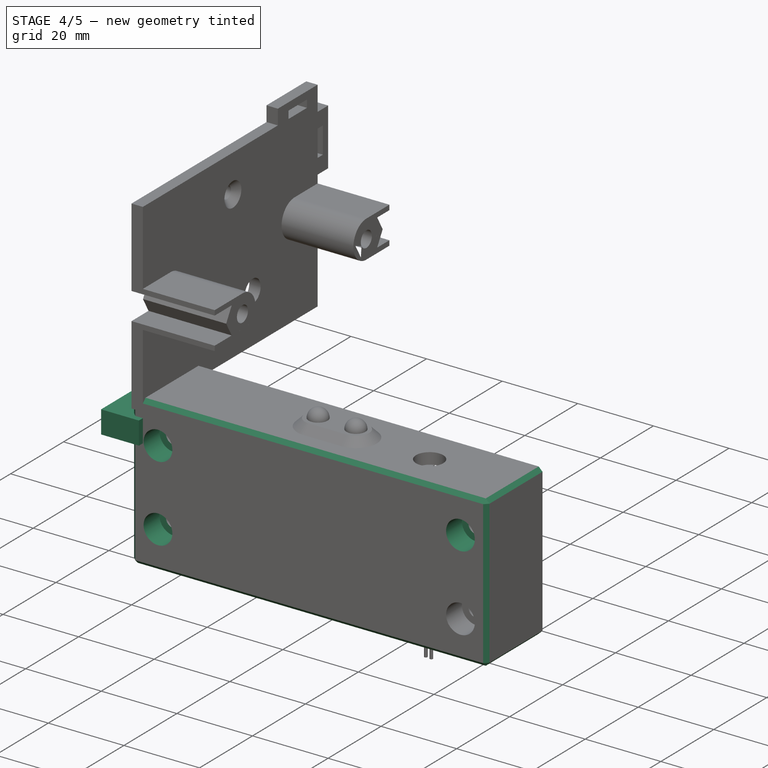
[diagram: stage 4 of 5 — iso view after this stage's code; geometry added in this stage tinted green]
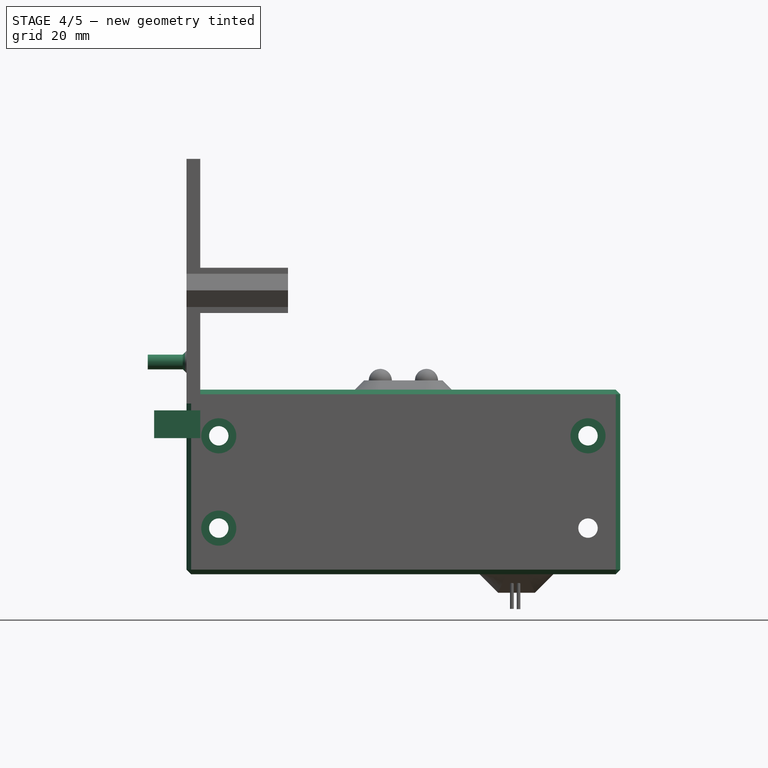
[diagram: stage 4 of 5 — front view after this stage's code; geometry added in this stage tinted green]
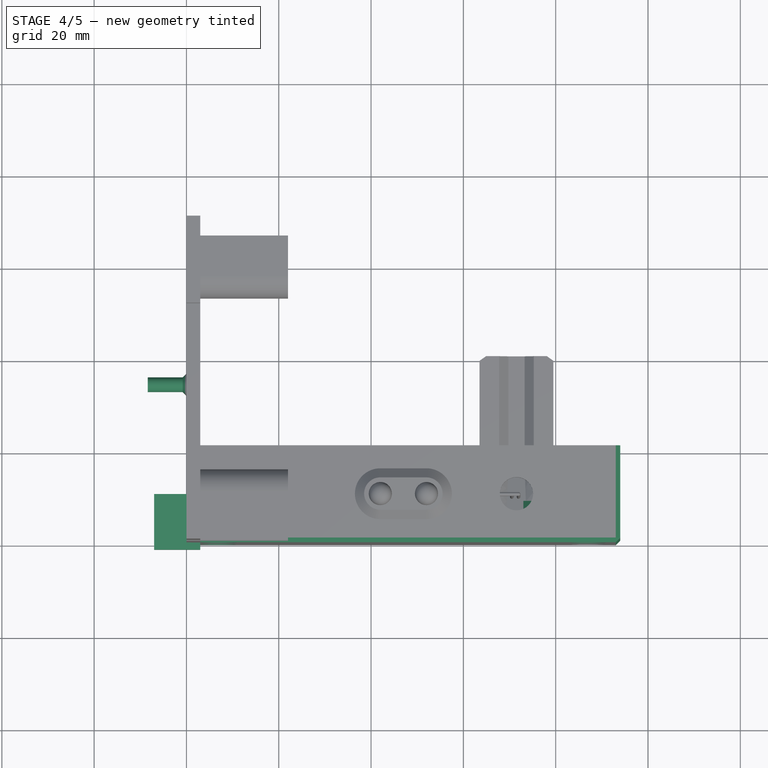
[diagram: stage 4 of 5 — top view after this stage's code; geometry added in this stage tinted green]
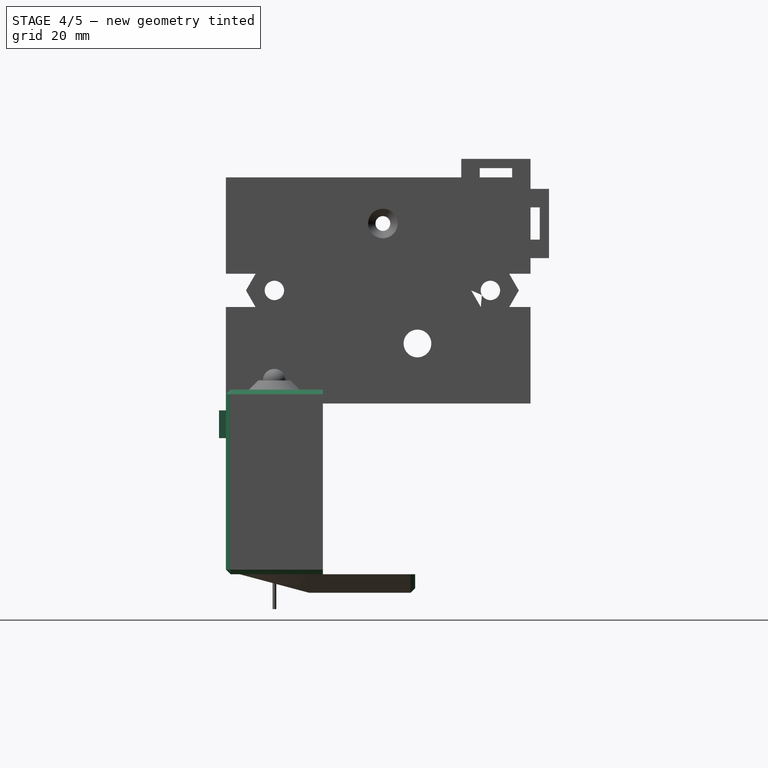
[diagram: stage 4 of 5 — right view after this stage's code; geometry added in this stage tinted green]
FEATURE [Part::Box] Box001  label="Würfel001"
  AttacherType = Attacher::AttachEngine3D
  Height = 6
  Length = 12
  Placement = pos=(3,10.5,-1.5) rot=(0.707107,-0.707107,0;3.14159rad)
  Width = 10
FEATURE [Part::Cone] Cone003  label="Kegel002"
  Angle = 360
  AttacherType = Attacher::AttachEngine3D
  Height = 4
  Radius1 = 0
  Radius2 = 4
FEATURE [Part::Cylinder] Cylinder003  label="Zylinder003"
  Angle = 360
  AttacherType = Attacher::AttachEngine3D
  FirstAngle = 0
  Height = 10
  Placement = pos=(0,0,-6) rot=(0,0,1;0rad)
  Radius = 1.6
  SecondAngle = 0
FEATURE [Part::MultiFuse] Fusion
  Placement = pos=(-2.4,34,9) rot=(0,1,0;1.5708rad)
  Shapes = -> [Cone003,Cylinder003]
FEATURE [Part::Cone] Cone004  label="Kegel003"
  Angle = 360
  AttacherType = Attacher::AttachEngine3D
  Height = 4
  Radius1 = 0
  Radius2 = 4
FEATURE [Part::Cylinder] Cylinder004  label="Zylinder004"
  Angle = 360
  AttacherType = Attacher::AttachEngine3D
  FirstAngle = 0
  Height = 10
  Placement = pos=(0,0,-6) rot=(0,0,1;0rad)
  Radius = 1.6
  SecondAngle = 0
FEATURE [Part::MultiFuse] Fusion001
  Placement = pos=(-2.4,34,9) rot=(0,1,0;1.5708rad)
  Shapes = -> [Cone004,Cylinder004]
FEATURE [PartDesign::SubtractiveCylinder] Cylinder006
  Angle = 360
  AttacherType = Attacher::AttachEngine3D
  BaseFeature = -> Cylinder005
  FirstAngle = 0
  Height = 6
  MapMode = 11
  Placement = pos=(87,0,-7) rot=(0.57735,-0.57735,-0.57735;4.18879rad)
  Radius = 3.8
  SecondAngle = 0
  Support = -> [Cylinder005]
FEATURE [PartDesign::SubtractiveCylinder] Cylinder007
  Angle = 360
  AttacherType = Attacher::AttachEngine3D
  BaseFeature = -> Cylinder006
  FirstAngle = 0
  Height = 6
  MapMode = 11
  Placement = pos=(7,0,-7) rot=(0.57735,-0.57735,-0.57735;4.18879rad)
  Radius = 3.8
  SecondAngle = 0
  Support = -> [Cylinder006]
FEATURE [PartDesign::SubtractiveCylinder] Cylinder008
  Angle = 360
  AttacherType = Attacher::AttachEngine3D
  BaseFeature = -> Cylinder007
  FirstAngle = 0
  Height = 6
  MapMode = 11
  Placement = pos=(7,2e-16,-27) rot=(-0.57735,0.57735,0.57735;2.0944rad)
  Radius = 3.8
  SecondAngle = 0
  Support = -> [Cylinder007]
FEATURE [PartDesign::Chamfer] Chamfer
  Angle = 45
  Base = -> Cylinder008 [Edge11,Edge7,Edge43,Edge51,Edge50,Edge54,Edge55,Edge138,Edge16,Edge12,Edge61,Edge60,Edge58,Edge56,Edge160,Edge164,Edge163]
  BaseFeature = -> Cylinder008
  ChamferType = 0
  FlipDirection = false
  Placement = pos=(7,0,-27) rot=(0.57735,-0.57735,-0.57735;4.18879rad)
  Size = 1
  Size2 = 1
  SupportTransform = false
  UseAllEdges = false
FEATURE [Sketcher::SketchObject] Sketch019
  ExternalGeometry = -> [Chamfer]
  FullyConstrained = true
  MapMode = 5
  Placement = pos=(7,3,-27) rot=(-0.57735,0.57735,0.57735;2.0944rad)
  Support = -> [Chamfer]
  sketch-geometry (9):
    g0: LineSegment StartX=7 StartY=-68.7426 StartZ=0 EndX=-2 EndY=-68.7426 EndZ=0
    g1: LineSegment StartX=-2 StartY=-68.7426 StartZ=0 EndX=-2 EndY=-66 EndZ=0
    g2: LineSegment StartX=-2 StartY=-66 StartZ=0 EndX=7 EndY=-66 EndZ=0
    g3: LineSegment StartX=7 StartY=-66 StartZ=0 EndX=7 EndY=-68.7426 EndZ=0
    g4: LineSegment StartX=7 StartY=-60.7426 StartZ=0 EndX=7 EndY=-66 EndZ=0
    g5: LineSegment StartX=7 StartY=-68.7426 StartZ=0 EndX=7 EndY=-74 EndZ=0
    g6: LineSegment StartX=7 StartY=-68.7426 StartZ=0 EndX=9.74264 EndY=-68.7426 EndZ=0
    g7: LineSegment StartX=9.74264 StartY=-68.7426 StartZ=0 EndX=9.74264 EndY=-66 EndZ=0
    g8: LineSegment StartX=9.74264 StartY=-66 StartZ=0 EndX=7 EndY=-66 EndZ=0
  constraints (24):
    c: Coincident(g0,g1)
    c: Coincident(g1,g2)
    c: Coincident(g2,g3)
    c: Coincident(g3,g0)
    c: Horizontal(g0)
    c: Horizontal(g2)
    c: Vertical(g1)
    c: Vertical(g3)
    c: Distance(g2) = 9
    c: Coincident(g4,g2)
    c: Coincident(g5,g0)
    c: Vertical(g5)
    c: Equal(g4,g5)
    c: Equal(g3,g-4)
    c: Coincident(g5,g-4)
    c: Coincident(g4,g-3)
    c: Coincident(g6,g7)
    c: Coincident(g7,g8)
    c: Horizontal(g6)
    c: Horizontal(g8)
    c: Vertical(g7)
    c: Coincident(g6,g0)
    c: Coincident(g2,g8)
    c: Equal(g8,g7)
FEATURE [PartDesign::Pad] Pad013
  BaseFeature = -> Chamfer
  Direction = (0,1,0)
  Length = 6.5
  Length2 = 10
  Placement = pos=(7,0,-27) rot=(0.57735,-0.57735,-0.57735;4.18879rad)
  Profile = -> Sketch019
  ReferenceAxis = -> Sketch019 [N_Axis]
  Type = 0
FEATURE [Sketcher::SketchObject] Sketch020
  ExternalGeometry = -> [Pad013]
  FullyConstrained = true
  MapMode = 5
  Placement = pos=(73,-1.45e-14,-27) rot=(0,-1,0;1.5708rad)
  Support = -> [Pad013]
  sketch-geometry (10):
    g0: LineSegment StartX=-7 StartY=3 StartZ=0 EndX=-7 EndY=4.5 EndZ=0
    g1: LineSegment StartX=-7 StartY=3 StartZ=0 EndX=-1 EndY=3 EndZ=0
    g2: LineSegment StartX=-1 StartY=3 StartZ=0 EndX=-1 EndY=4.5 EndZ=0
    g3: LineSegment StartX=-7 StartY=4.5 StartZ=0 EndX=-5 EndY=6.5 EndZ=0
    g4: LineSegment StartX=-1 StartY=4.5 StartZ=0 EndX=-3 EndY=6.5 EndZ=0
    g5: LineSegment StartX=-5 StartY=6.5 StartZ=0 EndX=-3 EndY=6.5 EndZ=0
    g6: LineSegment StartX=-1.75736 StartY=9.5 StartZ=0 EndX=2 EndY=9.5 EndZ=0
    g7: LineSegment StartX=2 StartY=9.5 StartZ=0 EndX=2 EndY=5.74264 EndZ=0
    g8: LineSegment StartX=2 StartY=5.74264 StartZ=0 EndX=-1.75736 EndY=9.5 EndZ=0
    g9: LineSegment StartX=-1 StartY=3 StartZ=0 EndX=2 EndY=3 EndZ=0
  constraints (27):
    c: Vertical(g0)
    c: Coincident(g1,g2)
    c: Horizontal(g1)
    c: Vertical(g2)
    c: Coincident(g3,g0)
    c: Coincident(g4,g2)
    c: Coincident(g5,g3)
    c: Coincident(g5,g4)
    c: Horizontal(g5)
    c: Equal(g3,g4)
    c: Coincident(g0,g1)
    c: Distance(g0) = 1.5
    c: Perpendicular(g4,g3)
    c: Distance(g5) = 2
    c: Equal(g2,g0)
    c: Distance(g1) = 6
    c: Coincident(g6,g7)
    c: Vertical(g7)
    c: Coincident(g7,g8)
    c: Coincident(g8,g6)
    c: Horizontal(g6)
    c: Coincident(g0,g-3)
    c: Coincident(g9,g1)
    c: Coincident(g9,g-3)
    c: Coincident(g6,g-4)
    c: Equal(g6,g7)
    c: Distance(g4,g8) = 3
FEATURE [PartDesign::Pocket] Pocket003
  BaseFeature = -> Pad013
  Direction = (1,0,-2e-16)
  Length = 5
  Length2 = 5
  Placement = pos=(7,0,-27) rot=(0.57735,-0.57735,-0.57735;4.18879rad)
  Profile = -> Sketch020
  ReferenceAxis = -> Sketch020 [N_Axis]
  Type = 2
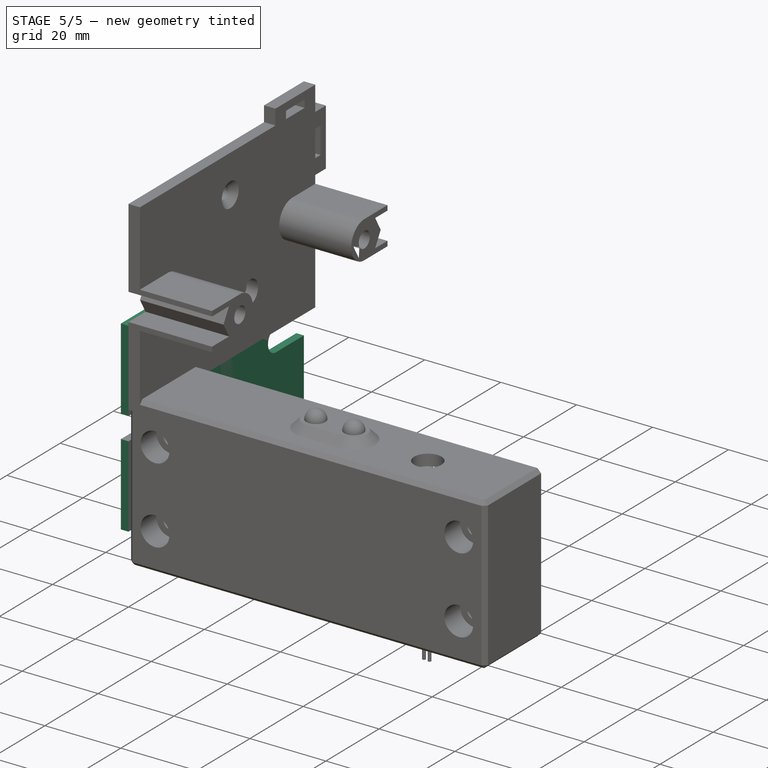
[diagram: stage 5 of 5 — iso view after this stage's code; geometry added in this stage tinted green]
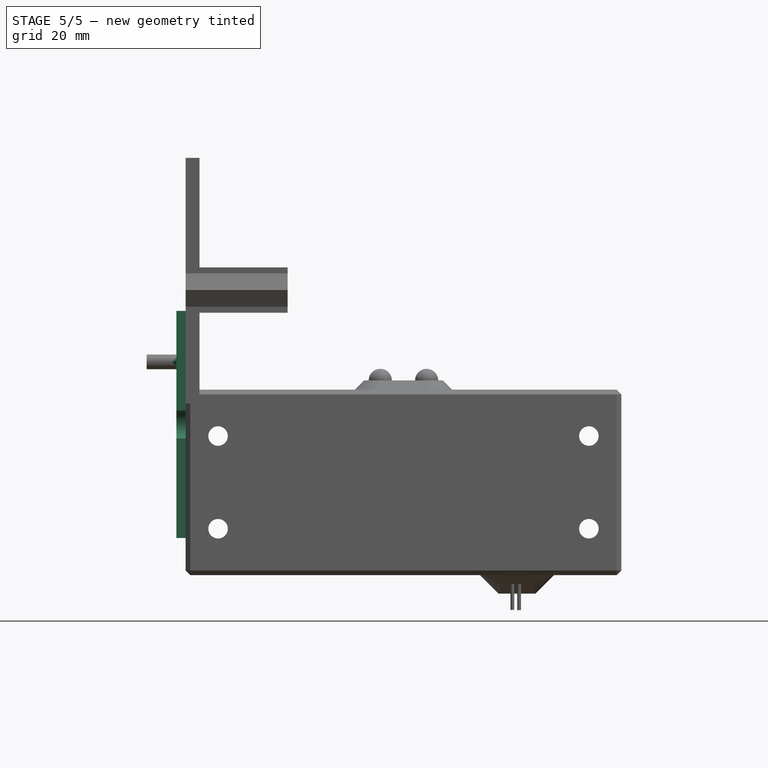
[diagram: stage 5 of 5 — front view after this stage's code; geometry added in this stage tinted green]
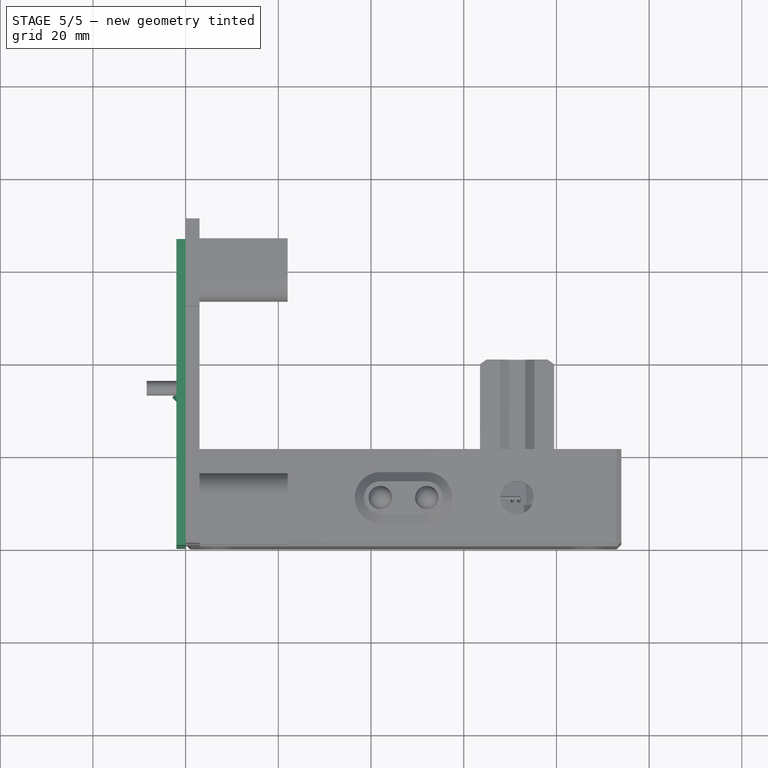
[diagram: stage 5 of 5 — top view after this stage's code; geometry added in this stage tinted green]
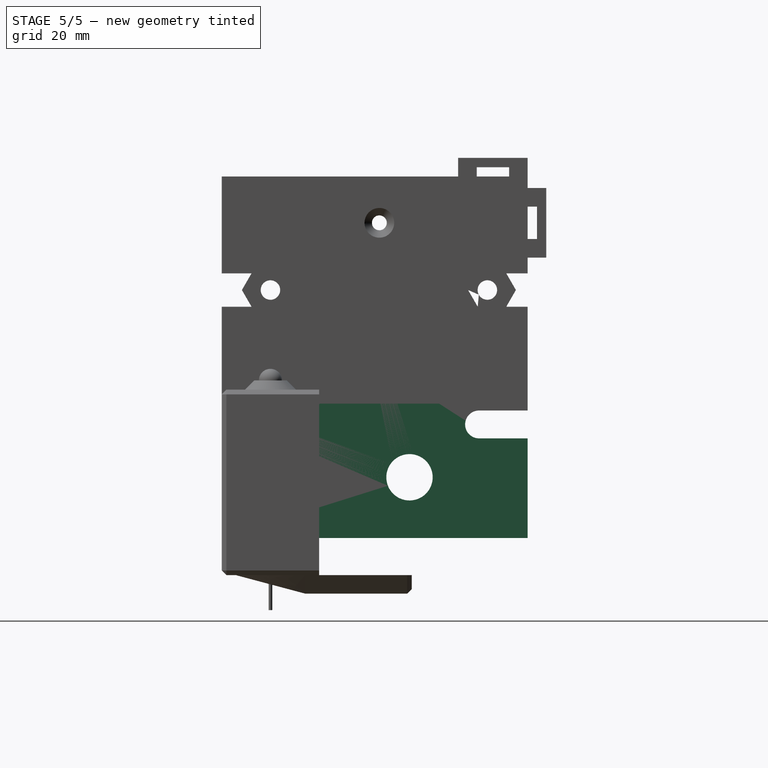
[diagram: stage 5 of 5 — right view after this stage's code; geometry added in this stage tinted green]
FEATURE [Part::Feature] CAP_RELE001
  shape: bbox 49 x 66 x 19.5 mm, 574 faces, 0 solids (baked)
FEATURE [Part::Refine] CAP_RELE001001
  Placement = pos=(0,-5652.3,2140.05) rot=(0,1,0;1.5708rad)
  Source = -> CAP_RELE001
FEATURE [Part::Cone] Cone  label="Kegel"
  Angle = 360
  AttacherType = Attacher::AttachEngine3D
  Height = 3
  Placement = pos=(-2.9,32,9) rot=(0,1,0;1.5708rad)
  Radius1 = 0
  Radius2 = 3
FEATURE [Part::Cone] Cone001  label="Kegel001"
  Angle = 360
  AttacherType = Attacher::AttachEngine3D
  Height = 3
  Placement = pos=(-2.9,32,9) rot=(0,1,0;1.5708rad)
  Radius1 = 0
  Radius2 = 3
FEATURE [Part::Box] Box  label="Würfel"
  AttacherType = Attacher::AttachEngine3D
  Height = 49
  Length = 66
  Placement = pos=(1.5e-14,66,20) rot=(0.707107,-0.707107,0;3.14159rad)
  Width = 2
FEATURE [Part::Cylinder] Cylinder  label="Zylinder"
  Angle = 360
  AttacherType = Attacher::AttachEngine3D
  FirstAngle = 0
  Height = 10
  Placement = pos=(-5.5,10.5,-4.5) rot=(0,1,0;1.5708rad)
  Radius = 3
  SecondAngle = 0
FEATURE [Part::Cylinder] Cylinder001  label="Zylinder001"
  Angle = 360
  AttacherType = Attacher::AttachEngine3D
  FirstAngle = 0
  Height = 10
  Placement = pos=(-5,40.5,-15.9) rot=(0,1,0;1.5708rad)
  Radius = 5
  SecondAngle = 0
FEATURE [Part::Cylinder] Cylinder002  label="Zylinder002"
  Angle = 360
  AttacherType = Attacher::AttachEngine3D
  FirstAngle = 0
  Height = 10
  Placement = pos=(-5.5,55.5,-4.5) rot=(0,1,0;1.5708rad)
  Radius = 3
  SecondAngle = 0
FEATURE [Part::Cut] Cut
  Base = -> Box
  Tool = -> Cylinder
FEATURE [Part::Cut] Cut001
  Base = -> Cut
  Tool = -> Cylinder001
FEATURE [Part::Cut] Cut002
  Base = -> Cut001
  Tool = -> Cylinder002
FEATURE [Part::Box] Box002  label="Würfel002"
  AttacherType = Attacher::AttachEngine3D
  Height = 6
  Length = 12
  Placement = pos=(4,67.5,-1.5) rot=(0.707107,-0.707107,0;3.14159rad)
  Width = 10
FEATURE [Part::Cut] Cut003
  Base = -> Cut002
  Tool = -> Box001
FEATURE [Part::Cut] Cut004
  Base = -> Cut003
  Tool = -> Box002
FEATURE [Part::Cut] Cut005
  Base = -> Cut004
  Tool = -> Fusion
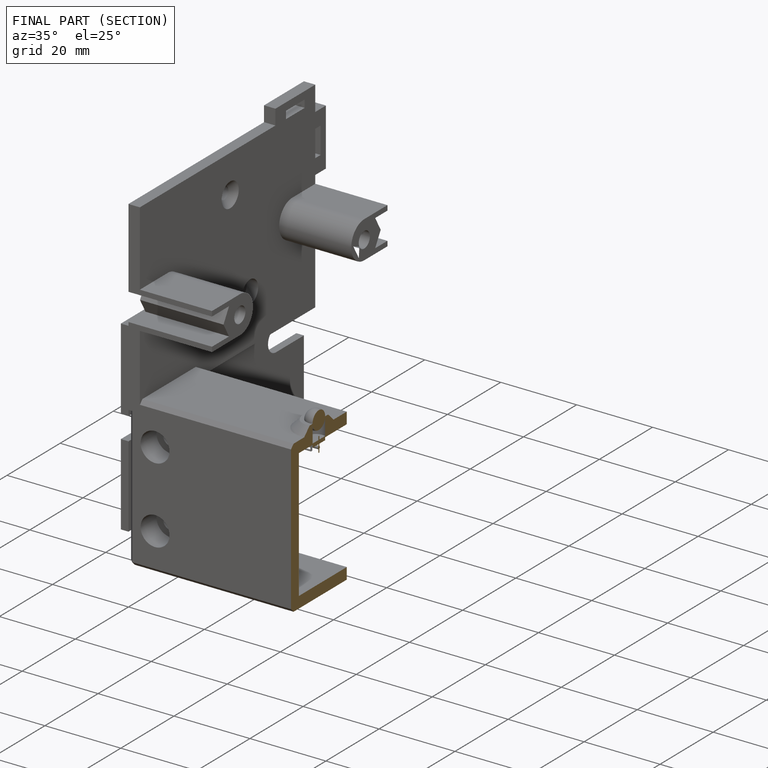
[diagram: finished part — half-section view (interior)]
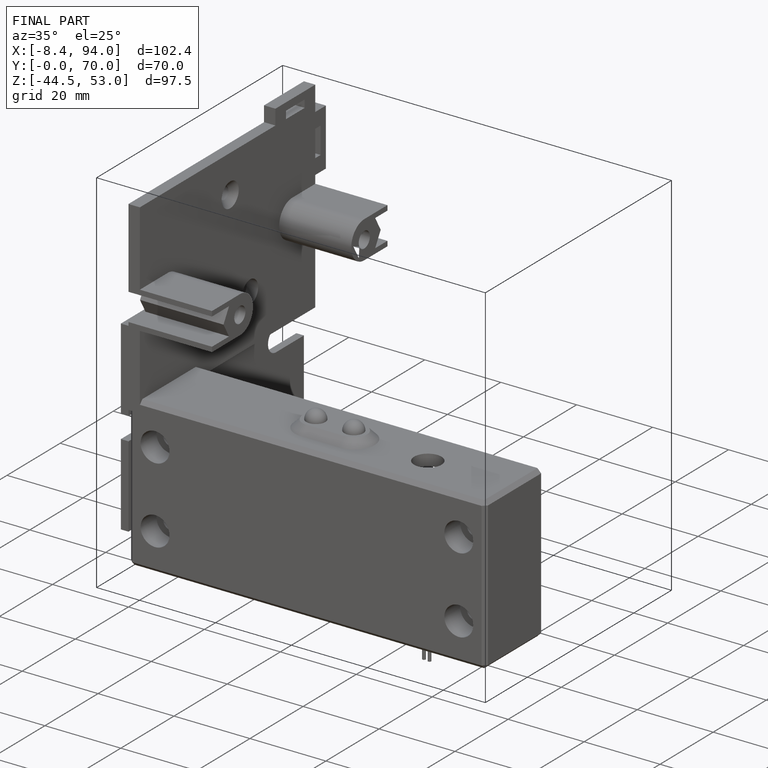
[diagram: finished part — iso view with bounding-box wireframe]
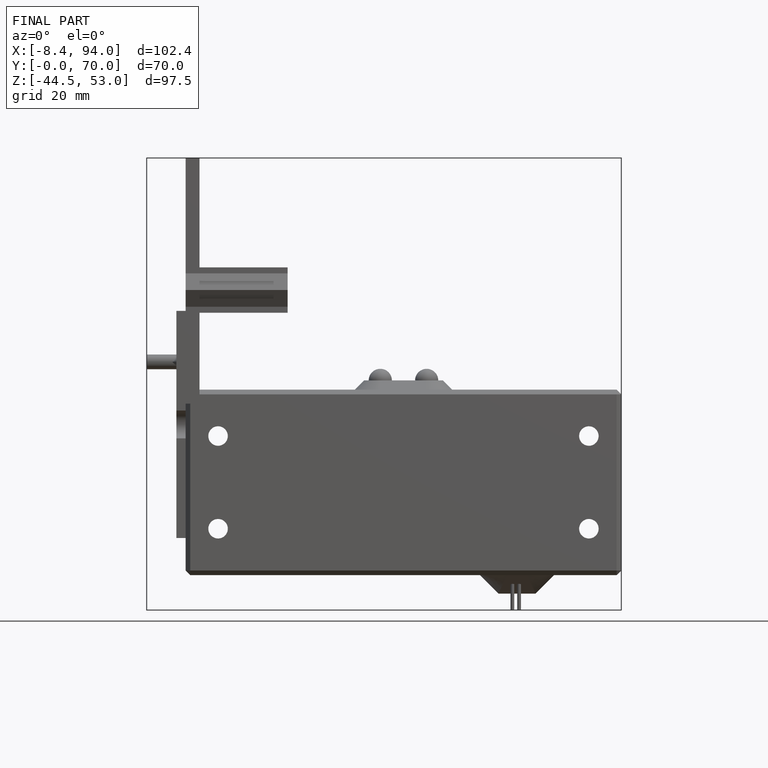
[diagram: finished part — front view with bounding-box wireframe]
